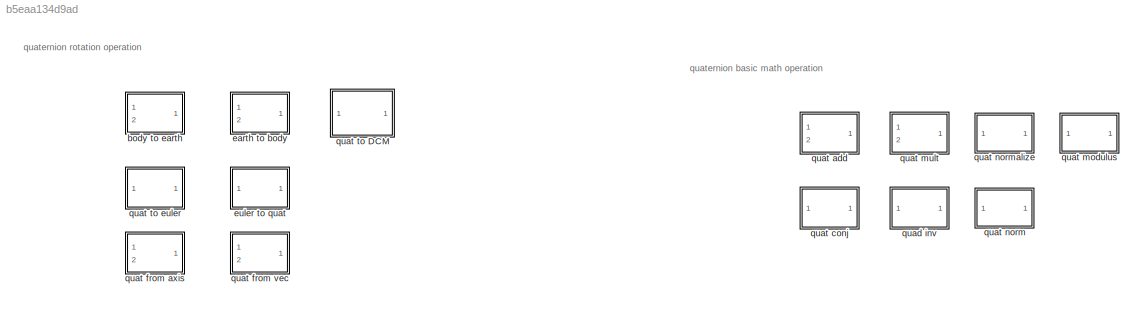
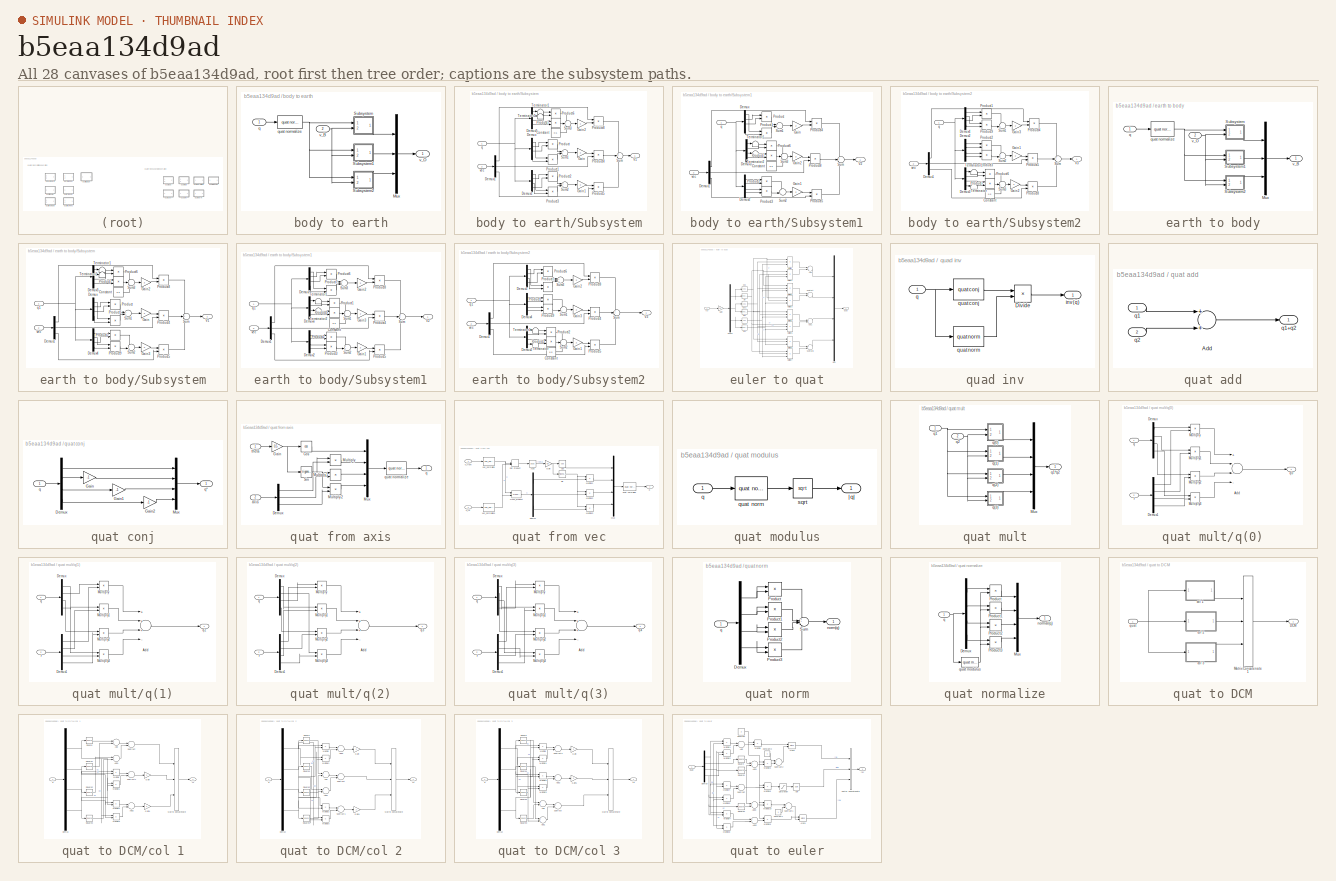
[diagram: thumbnail index - all 28 canvases of the model, root first then tree order]
MODEL slx_b5eaa134d9ad
KIND library
CONFIG AbsTol = auto
CONFIG EnableMultiTasking = off
CONFIG FixedStep = auto
CONFIG MaxStep = auto
CONFIG MinStep = auto
CONFIG RelTol = 1e-3
CONFIG SampleTimeConstraint = Unconstrained
CONFIG Solver = VariableStepAuto
CONFIG SolverName = VariableStepAuto
CONFIG StartTime = 0.0
CONFIG StopTime = 10.0
BLOCK [SubSystem] body to earth
  Ports = [2, 1]
  RequestExecContextInheritance = off
BLOCK [Mux] body to earth/Mux
  DisplayOption = bar
  Inputs = 3
  Ports = [3, 1]
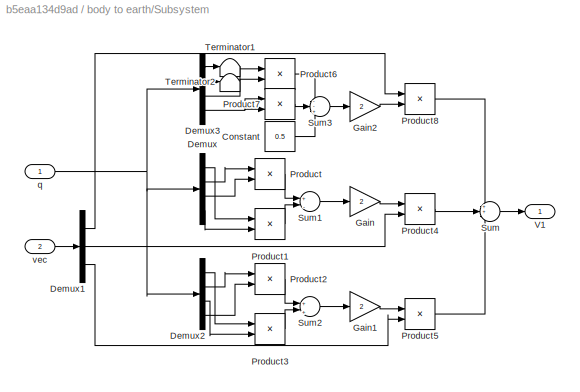
BLOCK [SubSystem] body to earth/Subsystem
  Ports = [2, 1]
  RequestExecContextInheritance = off
BLOCK [Constant] body to earth/Subsystem/Constant
  OutDataTypeStr = single
  Value = 0.5
BLOCK [Demux] body to earth/Subsystem/Demux
  DisplayOption = bar
  Ports = [1, 4]
BLOCK [Demux] body to earth/Subsystem/Demux1
  DisplayOption = bar
  Outputs = 3
  Ports = [1, 3]
BLOCK [Demux] body to earth/Subsystem/Demux2
  DisplayOption = bar
  Ports = [1, 4]
BLOCK [Demux] body to earth/Subsystem/Demux3
  DisplayOption = bar
  Ports = [1, 4]
BLOCK [Gain] body to earth/Subsystem/Gain
  Gain = 2
  ParamDataTypeStr = Inherit: Inherit via internal rule
  SaturateOnIntegerOverflow = off
BLOCK [Gain] body to earth/Subsystem/Gain1
  Gain = 2
  ParamDataTypeStr = Inherit: Inherit via internal rule
  SaturateOnIntegerOverflow = off
BLOCK [Gain] body to earth/Subsystem/Gain2
  Gain = 2
  ParamDataTypeStr = Inherit: Inherit via internal rule
  SaturateOnIntegerOverflow = off
BLOCK [Product] body to earth/Subsystem/Product
  InputSameDT = off
  OutDataTypeStr = Inherit: Inherit via internal rule
  Ports = [2, 1]
  SaturateOnIntegerOverflow = off
BLOCK [Product] body to earth/Subsystem/Product1
  InputSameDT = off
  OutDataTypeStr = Inherit: Inherit via internal rule
  Ports = [2, 1]
  SaturateOnIntegerOverflow = off
BLOCK [Product] body to earth/Subsystem/Product2
  InputSameDT = off
  OutDataTypeStr = Inherit: Inherit via internal rule
  Ports = [2, 1]
  SaturateOnIntegerOverflow = off
BLOCK [Product] body to earth/Subsystem/Product3
  InputSameDT = off
  OutDataTypeStr = Inherit: Inherit via internal rule
  Ports = [2, 1]
  SaturateOnIntegerOverflow = off
BLOCK [Product] body to earth/Subsystem/Product4
  InputSameDT = off
  Ports = [2, 1]
  SaturateOnIntegerOverflow = off
BLOCK [Product] body to earth/Subsystem/Product5
  InputSameDT = off
  Ports = [2, 1]
  SaturateOnIntegerOverflow = off
BLOCK [Product] body to earth/Subsystem/Product6
  InputSameDT = off
  OutDataTypeStr = Inherit: Inherit via internal rule
  Ports = [2, 1]
  SaturateOnIntegerOverflow = off
BLOCK [Product] body to earth/Subsystem/Product7
  InputSameDT = off
  OutDataTypeStr = Inherit: Inherit via internal rule
  Ports = [2, 1]
  SaturateOnIntegerOverflow = off
BLOCK [Product] body to earth/Subsystem/Product8
  InputSameDT = off
  Ports = [2, 1]
  SaturateOnIntegerOverflow = off
BLOCK [Sum] body to earth/Subsystem/Sum
  AccumDataTypeStr = single
  IconShape = round
  InputSameDT = off
  Inputs = 3
  OutDataTypeStr = Inherit: Inherit via internal rule
  Ports = [3, 1]
  SaturateOnIntegerOverflow = off
BLOCK [Sum] body to earth/Subsystem/Sum1
  IconShape = round
  InputSameDT = off
  Inputs = +|-
  OutDataTypeStr = Inherit: Inherit via internal rule
  Ports = [2, 1]
  SaturateOnIntegerOverflow = off
BLOCK [Sum] body to earth/Subsystem/Sum2
  IconShape = round
  InputSameDT = off
  Inputs = +|+
  OutDataTypeStr = Inherit: Inherit via internal rule
  Ports = [2, 1]
  SaturateOnIntegerOverflow = off
BLOCK [Sum] body to earth/Subsystem/Sum3
  IconShape = round
  InputSameDT = off
  Inputs = --+
  OutDataTypeStr = Inherit: Inherit via internal rule
  Ports = [3, 1]
  SaturateOnIntegerOverflow = off
BLOCK [Terminator] body to earth/Subsystem/Terminator1
BLOCK [Terminator] body to earth/Subsystem/Terminator2
BLOCK [Outport] body to earth/Subsystem/V1
  IconDisplay = Port number
BLOCK [Inport] body to earth/Subsystem/q
  IconDisplay = Port number
BLOCK [Inport] body to earth/Subsystem/vec
  IconDisplay = Port number
  Port = 2
BLOCK [SubSystem] body to earth/Subsystem1
  Ports = [2, 1]
  RequestExecContextInheritance = off
BLOCK [Constant] body to earth/Subsystem1/Constant
  OutDataTypeStr = single
  Value = 0.5
BLOCK [Demux] body to earth/Subsystem1/Demux
  DisplayOption = bar
  Ports = [1, 4]
BLOCK [Demux] body to earth/Subsystem1/Demux1
  DisplayOption = bar
  Outputs = 3
  Ports = [1, 3]
BLOCK [Demux] body to earth/Subsystem1/Demux2
  DisplayOption = bar
  Ports = [1, 4]
BLOCK [Demux] body to earth/Subsystem1/Demux3
  DisplayOption = bar
  Ports = [1, 4]
BLOCK [Gain] body to earth/Subsystem1/Gain
  Gain = 2
  ParamDataTypeStr = Inherit: Inherit via internal rule
  SaturateOnIntegerOverflow = off
BLOCK [Gain] body to earth/Subsystem1/Gain1
  Gain = 2
  ParamDataTypeStr = Inherit: Inherit via internal rule
  SaturateOnIntegerOverflow = off
BLOCK [Gain] body to earth/Subsystem1/Gain2
  Gain = 2
  ParamDataTypeStr = Inherit: Inherit via internal rule
  SaturateOnIntegerOverflow = off
BLOCK [Product] body to earth/Subsystem1/Product
  InputSameDT = off
  OutDataTypeStr = Inherit: Inherit via internal rule
  Ports = [2, 1]
  SaturateOnIntegerOverflow = off
BLOCK [Product] body to earth/Subsystem1/Product1
  InputSameDT = off
  OutDataTypeStr = Inherit: Inherit via internal rule
  Ports = [2, 1]
  SaturateOnIntegerOverflow = off
BLOCK [Product] body to earth/Subsystem1/Product2
  InputSameDT = off
  OutDataTypeStr = Inherit: Inherit via internal rule
  Ports = [2, 1]
  SaturateOnIntegerOverflow = off
BLOCK [Product] body to earth/Subsystem1/Product3
  InputSameDT = off
  OutDataTypeStr = Inherit: Inherit via internal rule
  Ports = [2, 1]
  SaturateOnIntegerOverflow = off
BLOCK [Product] body to earth/Subsystem1/Product4
  InputSameDT = off
  OutDataTypeStr = Inherit: Inherit via internal rule
  Ports = [2, 1]
  SaturateOnIntegerOverflow = off
BLOCK [Product] body to earth/Subsystem1/Product5
  InputSameDT = off
  OutDataTypeStr = Inherit: Inherit via internal rule
  Ports = [2, 1]
  SaturateOnIntegerOverflow = off
BLOCK [Product] body to earth/Subsystem1/Product6
  InputSameDT = off
  OutDataTypeStr = Inherit: Inherit via internal rule
  Ports = [2, 1]
  SaturateOnIntegerOverflow = off
BLOCK [Product] body to earth/Subsystem1/Product7
  InputSameDT = off
  OutDataTypeStr = Inherit: Inherit via internal rule
  Ports = [2, 1]
  SaturateOnIntegerOverflow = off
BLOCK [Product] body to earth/Subsystem1/Product8
  InputSameDT = off
  OutDataTypeStr = Inherit: Inherit via internal rule
  Ports = [2, 1]
  SaturateOnIntegerOverflow = off
BLOCK [Sum] body to earth/Subsystem1/Sum
  AccumDataTypeStr = single
  IconShape = round
  InputSameDT = off
  Inputs = 3
  OutDataTypeStr = Inherit: Inherit via internal rule
  Ports = [3, 1]
  SaturateOnIntegerOverflow = off
BLOCK [Sum] body to earth/Subsystem1/Sum1
  IconShape = round
  InputSameDT = off
  Inputs = +|+
  OutDataTypeStr = Inherit: Inherit via internal rule
  Ports = [2, 1]
  SaturateOnIntegerOverflow = off
BLOCK [Sum] body to earth/Subsystem1/Sum2
  IconShape = round
  InputSameDT = off
  Inputs = -+|
  OutDataTypeStr = Inherit: Inherit via internal rule
  Ports = [2, 1]
  SaturateOnIntegerOverflow = off
BLOCK [Sum] body to earth/Subsystem1/Sum3
  IconShape = round
  InputSameDT = off
  Inputs = --+
  OutDataTypeStr = Inherit: Inherit via internal rule
  Ports = [3, 1]
  SaturateOnIntegerOverflow = off
BLOCK [Terminator] body to earth/Subsystem1/Terminator1
BLOCK [Terminator] body to earth/Subsystem1/Terminator2
BLOCK [Outport] body to earth/Subsystem1/V2
  IconDisplay = Port number
BLOCK [Inport] body to earth/Subsystem1/q
  IconDisplay = Port number
BLOCK [Inport] body to earth/Subsystem1/vec
  IconDisplay = Port number
  Port = 2
BLOCK [SubSystem] body to earth/Subsystem2
  Ports = [2, 1]
  RequestExecContextInheritance = off
BLOCK [Constant] body to earth/Subsystem2/Constant
  OutDataTypeStr = single
  Value = 0.5
BLOCK [Demux] body to earth/Subsystem2/Demux1
  DisplayOption = bar
  Outputs = 3
  Ports = [1, 3]
BLOCK [Demux] body to earth/Subsystem2/Demux2
  DisplayOption = bar
  Ports = [1, 4]
BLOCK [Demux] body to earth/Subsystem2/Demux3
  DisplayOption = bar
  Ports = [1, 4]
BLOCK [Demux] body to earth/Subsystem2/Demux4
  DisplayOption = bar
  Ports = [1, 4]
BLOCK [Gain] body to earth/Subsystem2/Gain1
  Gain = 2
  ParamDataTypeStr = Inherit: Inherit via internal rule
  SaturateOnIntegerOverflow = off
BLOCK [Gain] body to earth/Subsystem2/Gain2
  Gain = 2
  ParamDataTypeStr = Inherit: Inherit via internal rule
  SaturateOnIntegerOverflow = off
BLOCK [Gain] body to earth/Subsystem2/Gain3
  Gain = 2
  ParamDataTypeStr = Inherit: Inherit via internal rule
  SaturateOnIntegerOverflow = off
BLOCK [Product] body to earth/Subsystem2/Product1
  InputSameDT = off
  OutDataTypeStr = Inherit: Inherit via internal rule
  Ports = [2, 1]
  SaturateOnIntegerOverflow = off
BLOCK [Product] body to earth/Subsystem2/Product2
  InputSameDT = off
  OutDataTypeStr = Inherit: Inherit via internal rule
  Ports = [2, 1]
  SaturateOnIntegerOverflow = off
BLOCK [Product] body to earth/Subsystem2/Product3
  InputSameDT = off
  OutDataTypeStr = Inherit: Inherit via internal rule
  Ports = [2, 1]
  SaturateOnIntegerOverflow = off
BLOCK [Product] body to earth/Subsystem2/Product4
  InputSameDT = off
  OutDataTypeStr = Inherit: Inherit via internal rule
  Ports = [2, 1]
  SaturateOnIntegerOverflow = off
BLOCK [Product] body to earth/Subsystem2/Product5
  InputSameDT = off
  OutDataTypeStr = Inherit: Inherit via internal rule
  Ports = [2, 1]
  SaturateOnIntegerOverflow = off
BLOCK [Product] body to earth/Subsystem2/Product6
  InputSameDT = off
  OutDataTypeStr = Inherit: Inherit via internal rule
  Ports = [2, 1]
  SaturateOnIntegerOverflow = off
BLOCK [Product] body to earth/Subsystem2/Product7
  InputSameDT = off
  OutDataTypeStr = Inherit: Inherit via internal rule
  Ports = [2, 1]
  SaturateOnIntegerOverflow = off
BLOCK [Product] body to earth/Subsystem2/Product8
  InputSameDT = off
  OutDataTypeStr = Inherit: Inherit via internal rule
  Ports = [2, 1]
  SaturateOnIntegerOverflow = off
BLOCK [Product] body to earth/Subsystem2/Product9
  InputSameDT = off
  OutDataTypeStr = Inherit: Inherit via internal rule
  Ports = [2, 1]
  SaturateOnIntegerOverflow = off
BLOCK [Sum] body to earth/Subsystem2/Sum
  AccumDataTypeStr = single
  IconShape = round
  InputSameDT = off
  Inputs = 3
  OutDataTypeStr = Inherit: Inherit via internal rule
  Ports = [3, 1]
  SaturateOnIntegerOverflow = off
BLOCK [Sum] body to earth/Subsystem2/Sum1
  IconShape = round
  InputSameDT = off
  Inputs = -+|
  OutDataTypeStr = Inherit: Inherit via internal rule
  Ports = [2, 1]
  SaturateOnIntegerOverflow = off
BLOCK [Sum] body to earth/Subsystem2/Sum2
  IconShape = round
  InputSameDT = off
  Inputs = ++|
  OutDataTypeStr = Inherit: Inherit via internal rule
  Ports = [2, 1]
  SaturateOnIntegerOverflow = off
BLOCK [Sum] body to earth/Subsystem2/Sum3
  IconShape = round
  InputSameDT = off
  Inputs = --+
  OutDataTypeStr = Inherit: Inherit via internal rule
  Ports = [3, 1]
  SaturateOnIntegerOverflow = off
BLOCK [Terminator] body to earth/Subsystem2/Terminator
BLOCK [Terminator] body to earth/Subsystem2/Terminator1
BLOCK [Outport] body to earth/Subsystem2/V3
  IconDisplay = Port number
BLOCK [Inport] body to earth/Subsystem2/q
  IconDisplay = Port number
BLOCK [Inport] body to earth/Subsystem2/vec
  IconDisplay = Port number
  Port = 2
BLOCK [Inport] body to earth/q
  IconDisplay = Port number
  Unit = 1
BLOCK [Reference] body to earth/quat normalize  REF=$bdroot/quat normalize
  Ports = [1, 1]
  SourceBlock = $bdroot/quat normalize
  SourceType = SubSystem
BLOCK [Inport] body to earth/v_B
  IconDisplay = Port number
  Port = 2
BLOCK [Outport] body to earth/v_O
  IconDisplay = Port number
BLOCK [SubSystem] earth to body
  Ports = [2, 1]
  RequestExecContextInheritance = off
BLOCK [Mux] earth to body/Mux
  DisplayOption = bar
  Inputs = 3
  Ports = [3, 1]
BLOCK [SubSystem] earth to body/Subsystem
  Ports = [2, 1]
  RequestExecContextInheritance = off
BLOCK [Constant] earth to body/Subsystem/Constant
  OutDataTypeStr = single
  Value = 0.5
BLOCK [Demux] earth to body/Subsystem/Demux
  DisplayOption = bar
  Ports = [1, 4]
BLOCK [Demux] earth to body/Subsystem/Demux1
  DisplayOption = bar
  Outputs = 3
  Ports = [1, 3]
BLOCK [Demux] earth to body/Subsystem/Demux3
  DisplayOption = bar
  Ports = [1, 4]
BLOCK [Demux] earth to body/Subsystem/Demux4
  DisplayOption = bar
  Ports = [1, 4]
BLOCK [Gain] earth to body/Subsystem/Gain
  Gain = 2
  ParamDataTypeStr = Inherit: Inherit via internal rule
  SaturateOnIntegerOverflow = off
BLOCK [Gain] earth to body/Subsystem/Gain2
  Gain = 2
  ParamDataTypeStr = Inherit: Inherit via internal rule
  SaturateOnIntegerOverflow = off
BLOCK [Gain] earth to body/Subsystem/Gain3
  Gain = 2
  ParamDataTypeStr = Inherit: Inherit via internal rule
  SaturateOnIntegerOverflow = off
BLOCK [Product] earth to body/Subsystem/Product
  InputSameDT = off
  OutDataTypeStr = Inherit: Inherit via internal rule
  Ports = [2, 1]
  SaturateOnIntegerOverflow = off
BLOCK [Product] earth to body/Subsystem/Product1
  InputSameDT = off
  OutDataTypeStr = Inherit: Inherit via internal rule
  Ports = [2, 1]
  SaturateOnIntegerOverflow = off
BLOCK [Product] earth to body/Subsystem/Product2
  InputSameDT = off
  OutDataTypeStr = Inherit: Inherit via internal rule
  Ports = [2, 1]
  SaturateOnIntegerOverflow = off
BLOCK [Product] earth to body/Subsystem/Product4
  InputSameDT = off
  Ports = [2, 1]
  SaturateOnIntegerOverflow = off
BLOCK [Product] earth to body/Subsystem/Product5
  InputSameDT = off
  Ports = [2, 1]
  SaturateOnIntegerOverflow = off
BLOCK [Product] earth to body/Subsystem/Product6
  InputSameDT = off
  OutDataTypeStr = Inherit: Inherit via internal rule
  Ports = [2, 1]
  SaturateOnIntegerOverflow = off
BLOCK [Product] earth to body/Subsystem/Product7
  InputSameDT = off
  OutDataTypeStr = Inherit: Inherit via internal rule
  Ports = [2, 1]
  SaturateOnIntegerOverflow = off
BLOCK [Product] earth to body/Subsystem/Product8
  InputSameDT = off
  Ports = [2, 1]
  SaturateOnIntegerOverflow = off
BLOCK [Product] earth to body/Subsystem/Product9
  InputSameDT = off
  OutDataTypeStr = Inherit: Inherit via internal rule
  Ports = [2, 1]
  SaturateOnIntegerOverflow = off
BLOCK [Sum] earth to body/Subsystem/Sum
  AccumDataTypeStr = single
  IconShape = round
  InputSameDT = off
  Inputs = 3
  OutDataTypeStr = Inherit: Inherit via internal rule
  Ports = [3, 1]
  SaturateOnIntegerOverflow = off
BLOCK [Sum] earth to body/Subsystem/Sum1
  IconShape = round
  InputSameDT = off
  Inputs = +|+
  OutDataTypeStr = Inherit: Inherit via internal rule
  Ports = [2, 1]
  SaturateOnIntegerOverflow = off
BLOCK [Sum] earth to body/Subsystem/Sum2
  IconShape = round
  InputSameDT = off
  Inputs = -+|
  OutDataTypeStr = Inherit: Inherit via internal rule
  Ports = [2, 1]
  SaturateOnIntegerOverflow = off
BLOCK [Sum] earth to body/Subsystem/Sum3
  IconShape = round
  InputSameDT = off
  Inputs = --+
  OutDataTypeStr = Inherit: Inherit via internal rule
  Ports = [3, 1]
  SaturateOnIntegerOverflow = off
BLOCK [Terminator] earth to body/Subsystem/Terminator1
BLOCK [Terminator] earth to body/Subsystem/Terminator2
BLOCK [Outport] earth to body/Subsystem/V1
  IconDisplay = Port number
BLOCK [Inport] earth to body/Subsystem/q1
  IconDisplay = Port number
BLOCK [Inport] earth to body/Subsystem/vec
  IconDisplay = Port number
  Port = 2
BLOCK [SubSystem] earth to body/Subsystem1
  Ports = [2, 1]
  RequestExecContextInheritance = off
BLOCK [Constant] earth to body/Subsystem1/Constant
  OutDataTypeStr = single
  Value = 0.5
BLOCK [Demux] earth to body/Subsystem1/Demux1
  DisplayOption = bar
  Outputs = 3
  Ports = [1, 3]
BLOCK [Demux] earth to body/Subsystem1/Demux2
  DisplayOption = bar
  Ports = [1, 4]
BLOCK [Demux] earth to body/Subsystem1/Demux3
  DisplayOption = bar
  Ports = [1, 4]
BLOCK [Demux] earth to body/Subsystem1/Demux4
  DisplayOption = bar
  Ports = [1, 4]
BLOCK [Gain] earth to body/Subsystem1/Gain1
  Gain = 2
  ParamDataTypeStr = Inherit: Inherit via internal rule
  SaturateOnIntegerOverflow = off
BLOCK [Gain] earth to body/Subsystem1/Gain2
  Gain = 2
  ParamDataTypeStr = Inherit: Inherit via internal rule
  SaturateOnIntegerOverflow = off
BLOCK [Gain] earth to body/Subsystem1/Gain3
  Gain = 2
  ParamDataTypeStr = Inherit: Inherit via internal rule
  SaturateOnIntegerOverflow = off
BLOCK [Product] earth to body/Subsystem1/Product1
  InputSameDT = off
  OutDataTypeStr = Inherit: Inherit via internal rule
  Ports = [2, 1]
  SaturateOnIntegerOverflow = off
BLOCK [Product] earth to body/Subsystem1/Product2
  InputSameDT = off
  OutDataTypeStr = Inherit: Inherit via internal rule
  Ports = [2, 1]
  SaturateOnIntegerOverflow = off
BLOCK [Product] earth to body/Subsystem1/Product3
  InputSameDT = off
  OutDataTypeStr = Inherit: Inherit via internal rule
  Ports = [2, 1]
  SaturateOnIntegerOverflow = off
BLOCK [Product] earth to body/Subsystem1/Product4
  InputSameDT = off
  Ports = [2, 1]
  SaturateOnIntegerOverflow = off
BLOCK [Product] earth to body/Subsystem1/Product5
  InputSameDT = off
  Ports = [2, 1]
  SaturateOnIntegerOverflow = off
BLOCK [Product] earth to body/Subsystem1/Product6
  InputSameDT = off
  OutDataTypeStr = Inherit: Inherit via internal rule
  Ports = [2, 1]
  SaturateOnIntegerOverflow = off
BLOCK [Product] earth to body/Subsystem1/Product7
  InputSameDT = off
  OutDataTypeStr = Inherit: Inherit via internal rule
  Ports = [2, 1]
  SaturateOnIntegerOverflow = off
BLOCK [Product] earth to body/Subsystem1/Product8
  InputSameDT = off
  Ports = [2, 1]
  SaturateOnIntegerOverflow = off
BLOCK [Product] earth to body/Subsystem1/Product9
  InputSameDT = off
  OutDataTypeStr = Inherit: Inherit via internal rule
  Ports = [2, 1]
  SaturateOnIntegerOverflow = off
BLOCK [Sum] earth to body/Subsystem1/Sum
  AccumDataTypeStr = single
  IconShape = round
  InputSameDT = off
  Inputs = 3
  OutDataTypeStr = Inherit: Inherit via internal rule
  Ports = [3, 1]
  SaturateOnIntegerOverflow = off
BLOCK [Sum] earth to body/Subsystem1/Sum1
  IconShape = round
  InputSameDT = off
  Inputs = --+
  OutDataTypeStr = Inherit: Inherit via internal rule
  Ports = [3, 1]
  SaturateOnIntegerOverflow = off
BLOCK [Sum] earth to body/Subsystem1/Sum2
  IconShape = round
  InputSameDT = off
  Inputs = ++|
  OutDataTypeStr = Inherit: Inherit via internal rule
  Ports = [2, 1]
  SaturateOnIntegerOverflow = off
BLOCK [Sum] earth to body/Subsystem1/Sum3
  IconShape = round
  InputSameDT = off
  Inputs = +|-
  OutDataTypeStr = Inherit: Inherit via internal rule
  Ports = [2, 1]
  SaturateOnIntegerOverflow = off
BLOCK [Terminator] earth to body/Subsystem1/Terminator1
BLOCK [Terminator] earth to body/Subsystem1/Terminator2
BLOCK [Outport] earth to body/Subsystem1/V2
  IconDisplay = Port number
BLOCK [Inport] earth to body/Subsystem1/q1
  IconDisplay = Port number
BLOCK [Inport] earth to body/Subsystem1/vec
  IconDisplay = Port number
  Port = 2
BLOCK [SubSystem] earth to body/Subsystem2
  Ports = [2, 1]
  RequestExecContextInheritance = off
BLOCK [Constant] earth to body/Subsystem2/Constant
  OutDataTypeStr = single
  Value = 0.5
BLOCK [Demux] earth to body/Subsystem2/Demux1
  DisplayOption = bar
  Outputs = 3
  Ports = [1, 3]
BLOCK [Demux] earth to body/Subsystem2/Demux2
  DisplayOption = bar
  Ports = [1, 4]
BLOCK [Demux] earth to body/Subsystem2/Demux3
  DisplayOption = bar
  Ports = [1, 4]
BLOCK [Demux] earth to body/Subsystem2/Demux4
  DisplayOption = bar
  Ports = [1, 4]
BLOCK [Gain] earth to body/Subsystem2/Gain1
  Gain = 2
  ParamDataTypeStr = Inherit: Inherit via internal rule
  SaturateOnIntegerOverflow = off
BLOCK [Gain] earth to body/Subsystem2/Gain2
  Gain = 2
  ParamDataTypeStr = Inherit: Inherit via internal rule
  SaturateOnIntegerOverflow = off
BLOCK [Gain] earth to body/Subsystem2/Gain3
  Gain = 2
  ParamDataTypeStr = Inherit: Inherit via internal rule
  SaturateOnIntegerOverflow = off
BLOCK [Product] earth to body/Subsystem2/Product1
  InputSameDT = off
  OutDataTypeStr = Inherit: Inherit via internal rule
  Ports = [2, 1]
  SaturateOnIntegerOverflow = off
BLOCK [Product] earth to body/Subsystem2/Product2
  InputSameDT = off
  OutDataTypeStr = Inherit: Inherit via internal rule
  Ports = [2, 1]
  SaturateOnIntegerOverflow = off
BLOCK [Product] earth to body/Subsystem2/Product3
  InputSameDT = off
  OutDataTypeStr = Inherit: Inherit via internal rule
  Ports = [2, 1]
  SaturateOnIntegerOverflow = off
BLOCK [Product] earth to body/Subsystem2/Product4
  InputSameDT = off
  Ports = [2, 1]
  SaturateOnIntegerOverflow = off
BLOCK [Product] earth to body/Subsystem2/Product5
  InputSameDT = off
  Ports = [2, 1]
  SaturateOnIntegerOverflow = off
BLOCK [Product] earth to body/Subsystem2/Product6
  InputSameDT = off
  OutDataTypeStr = Inherit: Inherit via internal rule
  Ports = [2, 1]
  SaturateOnIntegerOverflow = off
BLOCK [Product] earth to body/Subsystem2/Product7
  InputSameDT = off
  OutDataTypeStr = Inherit: Inherit via internal rule
  Ports = [2, 1]
  SaturateOnIntegerOverflow = off
BLOCK [Product] earth to body/Subsystem2/Product8
  InputSameDT = off
  Ports = [2, 1]
  SaturateOnIntegerOverflow = off
BLOCK [Product] earth to body/Subsystem2/Product9
  InputSameDT = off
  OutDataTypeStr = Inherit: Inherit via internal rule
  Ports = [2, 1]
  SaturateOnIntegerOverflow = off
BLOCK [Sum] earth to body/Subsystem2/Sum
  AccumDataTypeStr = single
  IconShape = round
  InputSameDT = off
  Inputs = 3
  OutDataTypeStr = Inherit: Inherit via internal rule
  Ports = [3, 1]
  SaturateOnIntegerOverflow = off
BLOCK [Sum] earth to body/Subsystem2/Sum1
  IconShape = round
  InputSameDT = off
  Inputs = -+|
  OutDataTypeStr = Inherit: Inherit via internal rule
  Ports = [2, 1]
  SaturateOnIntegerOverflow = off
BLOCK [Sum] earth to body/Subsystem2/Sum2
  IconShape = round
  InputSameDT = off
  Inputs = --+
  OutDataTypeStr = Inherit: Inherit via internal rule
  Ports = [3, 1]
  SaturateOnIntegerOverflow = off
BLOCK [Sum] earth to body/Subsystem2/Sum3
  IconShape = round
  InputSameDT = off
  Inputs = +|+
  OutDataTypeStr = Inherit: Inherit via internal rule
  Ports = [2, 1]
  SaturateOnIntegerOverflow = off
BLOCK [Terminator] earth to body/Subsystem2/Terminator
BLOCK [Terminator] earth to body/Subsystem2/Terminator1
BLOCK [Outport] earth to body/Subsystem2/V3
  IconDisplay = Port number
BLOCK [Inport] earth to body/Subsystem2/q1
  IconDisplay = Port number
BLOCK [Inport] earth to body/Subsystem2/vec
  IconDisplay = Port number
  Port = 2
BLOCK [Inport] earth to body/q
  IconDisplay = Port number
  Unit = 1
BLOCK [Reference] earth to body/quat normalize  REF=$bdroot/quat normalize
  Ports = [1, 1]
  SourceBlock = $bdroot/quat normalize
  SourceType = SubSystem
BLOCK [Outport] earth to body/v_B
  IconDisplay = Port number
BLOCK [Inport] earth to body/v_O
  IconDisplay = Port number
  Port = 2
BLOCK [SubSystem] euler to quat
  Ports = [1, 1]
  RequestExecContextInheritance = off
BLOCK [Sum] euler to quat/Add
  InputSameDT = off
  Ports = [2, 1]
  SaturateOnIntegerOverflow = off
BLOCK [Sum] euler to quat/Add1
  InputSameDT = off
  Ports = [2, 1]
  SaturateOnIntegerOverflow = off
BLOCK [Trigonometry] euler to quat/Cos
  Operator = cos
  Ports = [1, 1]
BLOCK [Trigonometry] euler to quat/Cos1
  Operator = cos
  Ports = [1, 1]
BLOCK [Trigonometry] euler to quat/Cos2
  Operator = cos
  Ports = [1, 1]
BLOCK [Demux] euler to quat/Demux
  DisplayOption = bar
  Outputs = 3
  Ports = [1, 3]
BLOCK [Gain] euler to quat/Gain
  Gain = 0.5
  ParamDataTypeStr = Inherit: Inherit via internal rule
  SaturateOnIntegerOverflow = off
BLOCK [Product] euler to quat/Multiply
  InputSameDT = off
  Inputs = 3
  Ports = [3, 1]
  RndMeth = Floor
  SaturateOnIntegerOverflow = off
BLOCK [Product] euler to quat/Multiply1
  InputSameDT = off
  Inputs = 3
  Ports = [3, 1]
  RndMeth = Floor
  SaturateOnIntegerOverflow = off
BLOCK [Product] euler to quat/Multiply2
  InputSameDT = off
  Inputs = 3
  Ports = [3, 1]
  RndMeth = Floor
  SaturateOnIntegerOverflow = off
BLOCK [Product] euler to quat/Multiply3
  InputSameDT = off
  Inputs = 3
  Ports = [3, 1]
  RndMeth = Floor
  SaturateOnIntegerOverflow = off
BLOCK [Product] euler to quat/Multiply4
  InputSameDT = off
  Inputs = 3
  Ports = [3, 1]
  RndMeth = Floor
  SaturateOnIntegerOverflow = off
BLOCK [Product] euler to quat/Multiply5
  InputSameDT = off
  Inputs = 3
  Ports = [3, 1]
  RndMeth = Floor
  SaturateOnIntegerOverflow = off
BLOCK [Product] euler to quat/Multiply6
  InputSameDT = off
  Inputs = 3
  Ports = [3, 1]
  RndMeth = Floor
  SaturateOnIntegerOverflow = off
BLOCK [Product] euler to quat/Multiply7
  InputSameDT = off
  Inputs = 3
  Ports = [3, 1]
  RndMeth = Floor
  SaturateOnIntegerOverflow = off
BLOCK [Mux] euler to quat/Mux
  DisplayOption = bar
  Ports = [4, 1]
BLOCK [Trigonometry] euler to quat/Sin
  Ports = [1, 1]
BLOCK [Trigonometry] euler to quat/Sin1
  Ports = [1, 1]
BLOCK [Trigonometry] euler to quat/Sin2
  Ports = [1, 1]
BLOCK [Sum] euler to quat/Subtract
  InputSameDT = off
  Inputs = +-
  Ports = [2, 1]
  SaturateOnIntegerOverflow = off
BLOCK [Sum] euler to quat/Subtract1
  InputSameDT = off
  Inputs = +-
  Ports = [2, 1]
  SaturateOnIntegerOverflow = off
BLOCK [Outport] euler to quat/quat
  IconDisplay = Port number
BLOCK [Inport] euler to quat/rpy
  IconDisplay = Port number
BLOCK [SubSystem] quad inv
  Ports = [1, 1]
  RequestExecContextInheritance = off
BLOCK [Product] quad inv/Divide
  InputSameDT = off
  Inputs = */
  OutDataTypeStr = Inherit: Inherit via internal rule
  Ports = [2, 1]
  RndMeth = Floor
  SaturateOnIntegerOverflow = off
BLOCK [Outport] quad inv/inv(q)
  IconDisplay = Port number
BLOCK [Inport] quad inv/q
  IconDisplay = Port number
BLOCK [Reference] quad inv/quat conj  REF=$bdroot/quat conj
  Ports = [1, 1]
  SourceBlock = $bdroot/quat conj
  SourceType = SubSystem
BLOCK [Reference] quad inv/quat norm  REF=$bdroot/quat norm
  Ports = [1, 1]
  SourceBlock = $bdroot/quat norm
  SourceType = SubSystem
BLOCK [SubSystem] quat add
  Ports = [2, 1]
  RequestExecContextInheritance = off
BLOCK [Sum] quat add/Add
  InputSameDT = off
  Ports = [2, 1]
  SaturateOnIntegerOverflow = off
BLOCK [Inport] quat add/q1
  IconDisplay = Port number
BLOCK [Outport] quat add/q1+q2
  IconDisplay = Port number
BLOCK [Inport] quat add/q2
  IconDisplay = Port number
  Port = 2
BLOCK [SubSystem] quat conj
  Ports = [1, 1]
  RequestExecContextInheritance = off
BLOCK [Demux] quat conj/Demux
  DisplayOption = bar
  Ports = [1, 4]
BLOCK [Gain] quat conj/Gain
  Gain = -1
  ParamDataTypeStr = Inherit: Inherit via internal rule
  SaturateOnIntegerOverflow = off
BLOCK [Gain] quat conj/Gain1
  Gain = -1
  ParamDataTypeStr = Inherit: Inherit via internal rule
  SaturateOnIntegerOverflow = off
BLOCK [Gain] quat conj/Gain2
  Gain = -1
  ParamDataTypeStr = Inherit: Inherit via internal rule
  SaturateOnIntegerOverflow = off
BLOCK [Mux] quat conj/Mux
  DisplayOption = bar
  Ports = [4, 1]
BLOCK [Inport] quat conj/q
  IconDisplay = Port number
BLOCK [Outport] quat conj/q*
  IconDisplay = Port number
BLOCK [SubSystem] quat from axis
  Ports = [2, 1]
  RequestExecContextInheritance = off
BLOCK [Trigonometry] quat from axis/Cos
  Operator = cos
  Ports = [1, 1]
BLOCK [Demux] quat from axis/Demux
  DisplayOption = bar
  Outputs = 3
  Ports = [1, 3]
BLOCK [Gain] quat from axis/Gain
  Gain = 0.5
  ParamDataTypeStr = Inherit: Inherit via internal rule
  SaturateOnIntegerOverflow = off
BLOCK [Product] quat from axis/Multiply
  InputSameDT = off
  Ports = [2, 1]
  RndMeth = Floor
  SaturateOnIntegerOverflow = off
BLOCK [Product] quat from axis/Multiply1
  InputSameDT = off
  Ports = [2, 1]
  RndMeth = Floor
  SaturateOnIntegerOverflow = off
BLOCK [Product] quat from axis/Multiply2
  InputSameDT = off
  Ports = [2, 1]
  RndMeth = Floor
  SaturateOnIntegerOverflow = off
BLOCK [Mux] quat from axis/Mux
  DisplayOption = bar
  Ports = [4, 1]
BLOCK [Trigonometry] quat from axis/Sin
  Ports = [1, 1]
BLOCK [Inport] quat from axis/axis
  IconDisplay = Port number
  Port = 2
BLOCK [Outport] quat from axis/q
  IconDisplay = Port number
BLOCK [Reference] quat from axis/quat normalize  REF=$bdroot/quat normalize
  Ports = [1, 1]
  SourceBlock = $bdroot/quat normalize
  SourceType = SubSystem
BLOCK [Inport] quat from axis/theta
  IconDisplay = Port number
BLOCK [SubSystem] quat from vec
  Ports = [2, 1]
  RequestExecContextInheritance = off
BLOCK [Trigonometry] quat from vec/Acos
  Operator = acos
  Ports = [1, 1]
BLOCK [Trigonometry] quat from vec/Cos
  Operator = cos
  Ports = [1, 1]
BLOCK [Demux] quat from vec/Demux
  DisplayOption = bar
  Outputs = 3
  Ports = [1, 3]
BLOCK [DotProduct] quat from vec/Dot Product
  OutDataTypeStr = Inherit: Inherit via internal rule
BLOCK [Gain] quat from vec/Gain
  Gain = 0.5
  ParamDataTypeStr = Inherit: Inherit via internal rule
  SaturateOnIntegerOverflow = off
BLOCK [Product] quat from vec/Multiply1
  InputSameDT = off
  OutDataTypeStr = Inherit: Inherit via internal rule
  Ports = [2, 1]
  RndMeth = Floor
  SaturateOnIntegerOverflow = off
BLOCK [Product] quat from vec/Multiply2
  InputSameDT = off
  OutDataTypeStr = Inherit: Inherit via internal rule
  Ports = [2, 1]
  RndMeth = Floor
  SaturateOnIntegerOverflow = off
BLOCK [Product] quat from vec/Multiply3
  InputSameDT = off
  OutDataTypeStr = Inherit: Inherit via internal rule
  Ports = [2, 1]
  RndMeth = Floor
  SaturateOnIntegerOverflow = off
BLOCK [Mux] quat from vec/Mux
  DisplayOption = bar
  Ports = [4, 1]
BLOCK [Trigonometry] quat from vec/Sin
  Ports = [1, 1]
BLOCK [Reference] quat from vec/cross_product  REF=AP_Math/cross_product
  Ports = [2, 1]
  SourceBlock = AP_Math/cross_product
  SourceType = SubSystem
BLOCK [Outport] quat from vec/q
  IconDisplay = Port number
BLOCK [Reference] quat from vec/quat normalize  REF=$bdroot/quat normalize
  Ports = [1, 1]
  SourceBlock = $bdroot/quat normalize
  SourceType = SubSystem
BLOCK [Inport] quat from vec/v_from
  IconDisplay = Port number
BLOCK [Inport] quat from vec/v_to
  IconDisplay = Port number
  Port = 2
BLOCK [Reference] quat from vec/vec_normalize  REF=AP_Math/vec_normalize
  Ports = [1, 1]
  SourceBlock = AP_Math/vec_normalize
  SourceType = SubSystem
BLOCK [Reference] quat from vec/vec_normalize1  REF=AP_Math/vec_normalize
  Ports = [1, 1]
  SourceBlock = AP_Math/vec_normalize
  SourceType = SubSystem
BLOCK [SubSystem] quat modulus
  Ports = [1, 1]
  RequestExecContextInheritance = off
BLOCK [Inport] quat modulus/q
  IconDisplay = Port number
  Unit = 1
BLOCK [Reference] quat modulus/quat norm  REF=$bdroot/quat norm
  Ports = [1, 1]
  SourceBlock = $bdroot/quat norm
  SourceType = SubSystem
BLOCK [Sqrt] quat modulus/sqrt
  AlgorithmType = Newton-Raphson
BLOCK [Outport] quat modulus/|q|
  IconDisplay = Port number
  Unit = 1
BLOCK [SubSystem] quat mult
  Ports = [2, 1]
  RequestExecContextInheritance = off
BLOCK [Mux] quat mult/Mux
  DisplayOption = bar
  Ports = [4, 1]
BLOCK [SubSystem] quat mult/q(0)
  Ports = [2, 1]
  RequestExecContextInheritance = off
BLOCK [Sum] quat mult/q(0)/Add
  AccumDataTypeStr = Inherit: Same as first input
  InputSameDT = off
  Inputs = +---
  OutDataTypeStr = Inherit: Inherit via internal rule
  Ports = [4, 1]
  SaturateOnIntegerOverflow = off
BLOCK [Demux] quat mult/q(0)/Demux
  DisplayOption = bar
  Ports = [1, 4]
BLOCK [Demux] quat mult/q(0)/Demux1
  DisplayOption = bar
  Ports = [1, 4]
BLOCK [Product] quat mult/q(0)/Multiply
  InputSameDT = off
  Ports = [2, 1]
  RndMeth = Floor
  SaturateOnIntegerOverflow = off
BLOCK [Product] quat mult/q(0)/Multiply1
  InputSameDT = off
  Ports = [2, 1]
  RndMeth = Floor
  SaturateOnIntegerOverflow = off
BLOCK [Product] quat mult/q(0)/Multiply2
  InputSameDT = off
  Ports = [2, 1]
  RndMeth = Floor
  SaturateOnIntegerOverflow = off
BLOCK [Product] quat mult/q(0)/Multiply3
  InputSameDT = off
  Ports = [2, 1]
  RndMeth = Floor
  SaturateOnIntegerOverflow = off
BLOCK [Inport] quat mult/q(0)/q
  IconDisplay = Port number
BLOCK [Outport] quat mult/q(0)/q0
  IconDisplay = Port number
BLOCK [Inport] quat mult/q(0)/r
  IconDisplay = Port number
  Port = 2
BLOCK [SubSystem] quat mult/q(1)
  Ports = [2, 1]
  RequestExecContextInheritance = off
BLOCK [Sum] quat mult/q(1)/Add
  AccumDataTypeStr = Inherit: Same as first input
  InputSameDT = off
  Inputs = +++-
  OutDataTypeStr = Inherit: Inherit via internal rule
  Ports = [4, 1]
  SaturateOnIntegerOverflow = off
BLOCK [Demux] quat mult/q(1)/Demux
  DisplayOption = bar
  Ports = [1, 4]
BLOCK [Demux] quat mult/q(1)/Demux1
  DisplayOption = bar
  Ports = [1, 4]
BLOCK [Product] quat mult/q(1)/Multiply
  InputSameDT = off
  Ports = [2, 1]
  RndMeth = Floor
  SaturateOnIntegerOverflow = off
BLOCK [Product] quat mult/q(1)/Multiply1
  InputSameDT = off
  Ports = [2, 1]
  RndMeth = Floor
  SaturateOnIntegerOverflow = off
BLOCK [Product] quat mult/q(1)/Multiply2
  InputSameDT = off
  Ports = [2, 1]
  RndMeth = Floor
  SaturateOnIntegerOverflow = off
BLOCK [Product] quat mult/q(1)/Multiply3
  InputSameDT = off
  Ports = [2, 1]
  RndMeth = Floor
  SaturateOnIntegerOverflow = off
BLOCK [Inport] quat mult/q(1)/q
  IconDisplay = Port number
BLOCK [Outport] quat mult/q(1)/q2
  IconDisplay = Port number
BLOCK [Inport] quat mult/q(1)/r
  IconDisplay = Port number
  Port = 2
BLOCK [SubSystem] quat mult/q(2)
  Ports = [2, 1]
  RequestExecContextInheritance = off
BLOCK [Sum] quat mult/q(2)/Add
  AccumDataTypeStr = Inherit: Same as first input
  InputSameDT = off
  Inputs = +++-
  OutDataTypeStr = Inherit: Inherit via internal rule
  Ports = [4, 1]
  SaturateOnIntegerOverflow = off
BLOCK [Demux] quat mult/q(2)/Demux
  DisplayOption = bar
  Ports = [1, 4]
BLOCK [Demux] quat mult/q(2)/Demux1
  DisplayOption = bar
  Ports = [1, 4]
BLOCK [Product] quat mult/q(2)/Multiply
  InputSameDT = off
  Ports = [2, 1]
  RndMeth = Floor
  SaturateOnIntegerOverflow = off
BLOCK [Product] quat mult/q(2)/Multiply1
  InputSameDT = off
  Ports = [2, 1]
  RndMeth = Floor
  SaturateOnIntegerOverflow = off
BLOCK [Product] quat mult/q(2)/Multiply2
  InputSameDT = off
  Ports = [2, 1]
  RndMeth = Floor
  SaturateOnIntegerOverflow = off
BLOCK [Product] quat mult/q(2)/Multiply3
  InputSameDT = off
  Ports = [2, 1]
  RndMeth = Floor
  SaturateOnIntegerOverflow = off
BLOCK [Inport] quat mult/q(2)/q
  IconDisplay = Port number
BLOCK [Outport] quat mult/q(2)/q3
  IconDisplay = Port number
BLOCK [Inport] quat mult/q(2)/r
  IconDisplay = Port number
  Port = 2
BLOCK [SubSystem] quat mult/q(3)
  Ports = [2, 1]
  RequestExecContextInheritance = off
BLOCK [Sum] quat mult/q(3)/Add
  AccumDataTypeStr = Inherit: Same as first input
  InputSameDT = off
  Inputs = +++-
  OutDataTypeStr = Inherit: Inherit via internal rule
  Ports = [4, 1]
  SaturateOnIntegerOverflow = off
BLOCK [Demux] quat mult/q(3)/Demux
  DisplayOption = bar
  Ports = [1, 4]
BLOCK [Demux] quat mult/q(3)/Demux1
  DisplayOption = bar
  Ports = [1, 4]
BLOCK [Product] quat mult/q(3)/Multiply
  InputSameDT = off
  Ports = [2, 1]
  RndMeth = Floor
  SaturateOnIntegerOverflow = off
BLOCK [Product] quat mult/q(3)/Multiply1
  InputSameDT = off
  Ports = [2, 1]
  RndMeth = Floor
  SaturateOnIntegerOverflow = off
BLOCK [Product] quat mult/q(3)/Multiply2
  InputSameDT = off
  Ports = [2, 1]
  RndMeth = Floor
  SaturateOnIntegerOverflow = off
BLOCK [Product] quat mult/q(3)/Multiply3
  InputSameDT = off
  Ports = [2, 1]
  RndMeth = Floor
  SaturateOnIntegerOverflow = off
BLOCK [Inport] quat mult/q(3)/q
  IconDisplay = Port number
BLOCK [Outport] quat mult/q(3)/q4
  IconDisplay = Port number
BLOCK [Inport] quat mult/q(3)/r
  IconDisplay = Port number
  Port = 2
BLOCK [Inport] quat mult/q1
  IconDisplay = Port number
  Unit = 1
BLOCK [Outport] quat mult/q1*q2
  IconDisplay = Port number
  Unit = 1
BLOCK [Inport] quat mult/q2
  IconDisplay = Port number
  Port = 2
  Unit = 1
BLOCK [SubSystem] quat norm
  Ports = [1, 1]
  RequestExecContextInheritance = off
BLOCK [Demux] quat norm/Demux
  DisplayOption = bar
  Ports = [1, 4]
BLOCK [Product] quat norm/Product
  InputSameDT = off
  OutDataTypeStr = Inherit: Inherit via internal rule
  Ports = [2, 1]
  RndMeth = Floor
  SaturateOnIntegerOverflow = off
BLOCK [Product] quat norm/Product1
  InputSameDT = off
  OutDataTypeStr = Inherit: Inherit via internal rule
  Ports = [2, 1]
  RndMeth = Floor
  SaturateOnIntegerOverflow = off
BLOCK [Product] quat norm/Product2
  InputSameDT = off
  OutDataTypeStr = Inherit: Inherit via internal rule
  Ports = [2, 1]
  RndMeth = Floor
  SaturateOnIntegerOverflow = off
BLOCK [Product] quat norm/Product3
  InputSameDT = off
  OutDataTypeStr = Inherit: Inherit via internal rule
  Ports = [2, 1]
  RndMeth = Floor
  SaturateOnIntegerOverflow = off
BLOCK [Sum] quat norm/Sum
  IconShape = round
  InputSameDT = off
  Inputs = 4
  OutDataTypeStr = Inherit: Inherit via internal rule
  Ports = [4, 1]
  SaturateOnIntegerOverflow = off
BLOCK [Outport] quat norm/norm(q)
  IconDisplay = Port number
  Unit = 1
BLOCK [Inport] quat norm/q
  IconDisplay = Port number
  Unit = 1
BLOCK [SubSystem] quat normalize
  Ports = [1, 1]
  RequestExecContextInheritance = off
BLOCK [Demux] quat normalize/Demux
  DisplayOption = bar
  Ports = [1, 4]
BLOCK [Mux] quat normalize/Mux
  DisplayOption = bar
  Ports = [4, 1]
BLOCK [Product] quat normalize/Product
  InputSameDT = off
  Inputs = */
  OutDataTypeStr = Inherit: Inherit via internal rule
  Ports = [2, 1]
  RndMeth = Floor
  SaturateOnIntegerOverflow = off
BLOCK [Product] quat normalize/Product1
  InputSameDT = off
  Inputs = */
  OutDataTypeStr = Inherit: Inherit via internal rule
  Ports = [2, 1]
  RndMeth = Floor
  SaturateOnIntegerOverflow = off
BLOCK [Product] quat normalize/Product2
  InputSameDT = off
  Inputs = */
  OutDataTypeStr = Inherit: Inherit via internal rule
  Ports = [2, 1]
  RndMeth = Floor
  SaturateOnIntegerOverflow = off
BLOCK [Product] quat normalize/Product3
  InputSameDT = off
  Inputs = */
  OutDataTypeStr = Inherit: Inherit via internal rule
  Ports = [2, 1]
  RndMeth = Floor
  SaturateOnIntegerOverflow = off
BLOCK [Outport] quat normalize/normal(q)
  IconDisplay = Port number
  Unit = 1
BLOCK [Inport] quat normalize/q
  IconDisplay = Port number
  Unit = 1
BLOCK [Reference] quat normalize/quat modulus  REF=$bdroot/quat modulus
  Ports = [1, 1]
  SourceBlock = $bdroot/quat modulus
  SourceType = SubSystem
BLOCK [SubSystem] quat to DCM
  Ports = [1, 1]
  RequestExecContextInheritance = off
BLOCK [Outport] quat to DCM/DCM
  IconDisplay = Port number
BLOCK [Concatenate] quat to DCM/Matrix Concatenate1
  ConcatenateDimension = 2
  Mode = Multidimensional array
  NumInputs = 3
  Ports = [3, 1]
BLOCK [SubSystem] quat to DCM/col 1
  Ports = [1, 1]
  RequestExecContextInheritance = off
BLOCK [Sum] quat to DCM/col 1/Add
  AccumDataTypeStr = Inherit: Same as first input
  InputSameDT = off
  OutDataTypeStr = Inherit: Inherit via internal rule
  Ports = [2, 1]
  SaturateOnIntegerOverflow = off
BLOCK [Sum] quat to DCM/col 1/Add1
  AccumDataTypeStr = Inherit: Same as first input
  InputSameDT = off
  OutDataTypeStr = Inherit: Inherit via internal rule
  Ports = [2, 1]
  SaturateOnIntegerOverflow = off
BLOCK [Sum] quat to DCM/col 1/Add2
  AccumDataTypeStr = Inherit: Same as first input
  InputSameDT = off
  OutDataTypeStr = Inherit: Inherit via internal rule
  Ports = [2, 1]
  SaturateOnIntegerOverflow = off
BLOCK [Demux] quat to DCM/col 1/Demux
  DisplayOption = bar
  Ports = [1, 4]
BLOCK [Gain] quat to DCM/col 1/Gain
  Gain = 2
  ParamDataTypeStr = Inherit: Inherit via internal rule
  SaturateOnIntegerOverflow = off
BLOCK [Gain] quat to DCM/col 1/Gain1
  Gain = 2
  ParamDataTypeStr = Inherit: Inherit via internal rule
  SaturateOnIntegerOverflow = off
BLOCK [Concatenate] quat to DCM/col 1/Matrix Concatenate
  ConcatenateDimension = 2
  NumInputs = 3
  Ports = [3, 1]
BLOCK [Product] quat to DCM/col 1/Multiply
  InputSameDT = off
  Ports = [2, 1]
  RndMeth = Floor
  SaturateOnIntegerOverflow = off
BLOCK [Product] quat to DCM/col 1/Multiply1
  InputSameDT = off
  Ports = [2, 1]
  RndMeth = Floor
  SaturateOnIntegerOverflow = off
BLOCK [Product] quat to DCM/col 1/Multiply2
  InputSameDT = off
  Ports = [2, 1]
  RndMeth = Floor
  SaturateOnIntegerOverflow = off
BLOCK [Product] quat to DCM/col 1/Multiply3
  InputSameDT = off
  Ports = [2, 1]
  RndMeth = Floor
  SaturateOnIntegerOverflow = off
BLOCK [Math] quat to DCM/col 1/Square
  Operator = square
  Ports = [1, 1]
BLOCK [Math] quat to DCM/col 1/Square1
  Operator = square
  Ports = [1, 1]
BLOCK [Math] quat to DCM/col 1/Square2
  Operator = square
  Ports = [1, 1]
BLOCK [Math] quat to DCM/col 1/Square3
  Operator = square
  Ports = [1, 1]
BLOCK [Sum] quat to DCM/col 1/Subtract
  AccumDataTypeStr = Inherit: Same as first input
  InputSameDT = off
  Inputs = +-
  OutDataTypeStr = Inherit: Inherit via internal rule
  Ports = [2, 1]
  SaturateOnIntegerOverflow = off
BLOCK [Sum] quat to DCM/col 1/Subtract1
  AccumDataTypeStr = Inherit: Same as first input
  InputSameDT = off
  Inputs = +-
  OutDataTypeStr = Inherit: Inherit via internal rule
  Ports = [2, 1]
  SaturateOnIntegerOverflow = off
BLOCK [Outport] quat to DCM/col 1/c1
  IconDisplay = Port number
BLOCK [Inport] quat to DCM/col 1/q
  IconDisplay = Port number
BLOCK [SubSystem] quat to DCM/col 2
  Ports = [1, 1]
  RequestExecContextInheritance = off
BLOCK [Sum] quat to DCM/col 2/Add
  AccumDataTypeStr = Inherit: Same as first input
  InputSameDT = off
  OutDataTypeStr = Inherit: Inherit via internal rule
  Ports = [2, 1]
  SaturateOnIntegerOverflow = off
BLOCK [Sum] quat to DCM/col 2/Add1
  AccumDataTypeStr = Inherit: Same as first input
  InputSameDT = off
  OutDataTypeStr = Inherit: Inherit via internal rule
  Ports = [2, 1]
  SaturateOnIntegerOverflow = off
BLOCK [Sum] quat to DCM/col 2/Add3
  AccumDataTypeStr = Inherit: Same as first input
  InputSameDT = off
  OutDataTypeStr = Inherit: Inherit via internal rule
  Ports = [2, 1]
  SaturateOnIntegerOverflow = off
BLOCK [Demux] quat to DCM/col 2/Demux
  DisplayOption = bar
  Ports = [1, 4]
BLOCK [Gain] quat to DCM/col 2/Gain
  Gain = 2
  ParamDataTypeStr = Inherit: Inherit via internal rule
  SaturateOnIntegerOverflow = off
BLOCK [Gain] quat to DCM/col 2/Gain1
  Gain = 2
  ParamDataTypeStr = Inherit: Inherit via internal rule
  SaturateOnIntegerOverflow = off
BLOCK [Concatenate] quat to DCM/col 2/Matrix Concatenate
  ConcatenateDimension = 2
  NumInputs = 3
  Ports = [3, 1]
BLOCK [Product] quat to DCM/col 2/Multiply
  InputSameDT = off
  Ports = [2, 1]
  RndMeth = Floor
  SaturateOnIntegerOverflow = off
BLOCK [Product] quat to DCM/col 2/Multiply1
  InputSameDT = off
  Ports = [2, 1]
  RndMeth = Floor
  SaturateOnIntegerOverflow = off
BLOCK [Product] quat to DCM/col 2/Multiply2
  InputSameDT = off
  Ports = [2, 1]
  RndMeth = Floor
  SaturateOnIntegerOverflow = off
BLOCK [Product] quat to DCM/col 2/Multiply3
  InputSameDT = off
  Ports = [2, 1]
  RndMeth = Floor
  SaturateOnIntegerOverflow = off
BLOCK [Math] quat to DCM/col 2/Square
  Operator = square
  Ports = [1, 1]
BLOCK [Math] quat to DCM/col 2/Square1
  Operator = square
  Ports = [1, 1]
BLOCK [Math] quat to DCM/col 2/Square2
  Operator = square
  Ports = [1, 1]
BLOCK [Math] quat to DCM/col 2/Square3
  Operator = square
  Ports = [1, 1]
BLOCK [Sum] quat to DCM/col 2/Subtract
  AccumDataTypeStr = Inherit: Same as first input
  InputSameDT = off
  Inputs = +-
  OutDataTypeStr = Inherit: Inherit via internal rule
  Ports = [2, 1]
  SaturateOnIntegerOverflow = off
BLOCK [Sum] quat to DCM/col 2/Subtract1
  AccumDataTypeStr = Inherit: Same as first input
  InputSameDT = off
  Inputs = +-
  OutDataTypeStr = Inherit: Inherit via internal rule
  Ports = [2, 1]
  SaturateOnIntegerOverflow = off
BLOCK [Outport] quat to DCM/col 2/c2
  IconDisplay = Port number
BLOCK [Inport] quat to DCM/col 2/q
  IconDisplay = Port number
BLOCK [SubSystem] quat to DCM/col 3
  Ports = [1, 1]
  RequestExecContextInheritance = off
BLOCK [Sum] quat to DCM/col 3/Add
  AccumDataTypeStr = Inherit: Same as first input
  InputSameDT = off
  OutDataTypeStr = Inherit: Inherit via internal rule
  Ports = [2, 1]
  SaturateOnIntegerOverflow = off
BLOCK [Sum] quat to DCM/col 3/Add1
  AccumDataTypeStr = Inherit: Same as first input
  InputSameDT = off
  OutDataTypeStr = Inherit: Inherit via internal rule
  Ports = [2, 1]
  SaturateOnIntegerOverflow = off
BLOCK [Sum] quat to DCM/col 3/Add2
  AccumDataTypeStr = Inherit: Same as first input
  InputSameDT = off
  OutDataTypeStr = Inherit: Inherit via internal rule
  Ports = [2, 1]
  SaturateOnIntegerOverflow = off
BLOCK [Demux] quat to DCM/col 3/Demux
  DisplayOption = bar
  Ports = [1, 4]
BLOCK [Gain] quat to DCM/col 3/Gain
  Gain = 2
  ParamDataTypeStr = Inherit: Inherit via internal rule
  SaturateOnIntegerOverflow = off
BLOCK [Gain] quat to DCM/col 3/Gain1
  Gain = 2
  ParamDataTypeStr = Inherit: Inherit via internal rule
  SaturateOnIntegerOverflow = off
BLOCK [Concatenate] quat to DCM/col 3/Matrix Concatenate
  ConcatenateDimension = 2
  NumInputs = 3
  Ports = [3, 1]
BLOCK [Product] quat to DCM/col 3/Multiply
  InputSameDT = off
  Ports = [2, 1]
  RndMeth = Floor
  SaturateOnIntegerOverflow = off
BLOCK [Product] quat to DCM/col 3/Multiply1
  InputSameDT = off
  Ports = [2, 1]
  RndMeth = Floor
  SaturateOnIntegerOverflow = off
BLOCK [Product] quat to DCM/col 3/Multiply2
  InputSameDT = off
  Ports = [2, 1]
  RndMeth = Floor
  SaturateOnIntegerOverflow = off
BLOCK [Product] quat to DCM/col 3/Multiply3
  InputSameDT = off
  Ports = [2, 1]
  RndMeth = Floor
  SaturateOnIntegerOverflow = off
BLOCK [Math] quat to DCM/col 3/Square
  Operator = square
  Ports = [1, 1]
BLOCK [Math] quat to DCM/col 3/Square1
  Operator = square
  Ports = [1, 1]
BLOCK [Math] quat to DCM/col 3/Square2
  Operator = square
  Ports = [1, 1]
BLOCK [Math] quat to DCM/col 3/Square3
  Operator = square
  Ports = [1, 1]
BLOCK [Sum] quat to DCM/col 3/Subtract
  AccumDataTypeStr = Inherit: Same as first input
  InputSameDT = off
  Inputs = +-
  OutDataTypeStr = Inherit: Inherit via internal rule
  Ports = [2, 1]
  SaturateOnIntegerOverflow = off
BLOCK [Sum] quat to DCM/col 3/Subtract2
  AccumDataTypeStr = Inherit: Same as first input
  InputSameDT = off
  Inputs = +-
  OutDataTypeStr = Inherit: Inherit via internal rule
  Ports = [2, 1]
  SaturateOnIntegerOverflow = off
BLOCK [Outport] quat to DCM/col 3/c3
  IconDisplay = Port number
BLOCK [Inport] quat to DCM/col 3/q
  IconDisplay = Port number
BLOCK [Inport] quat to DCM/quat
  IconDisplay = Port number
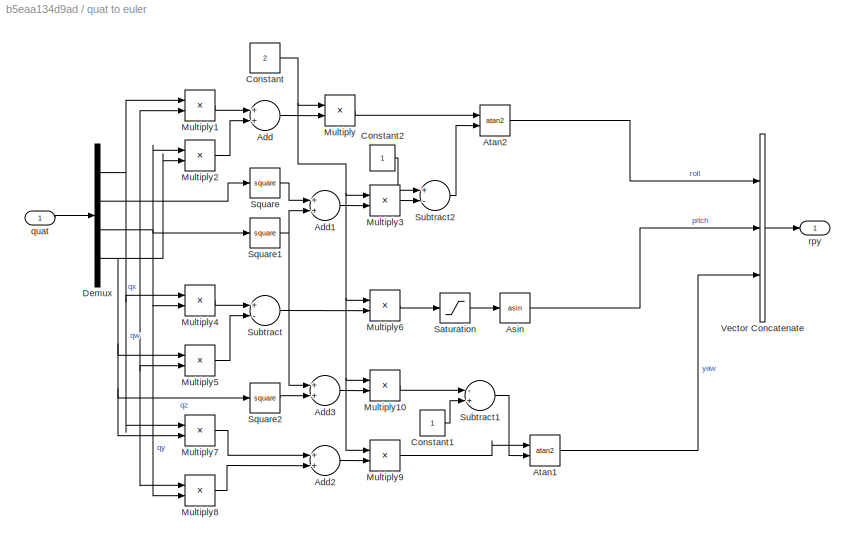
BLOCK [SubSystem] quat to euler
  Ports = [1, 1]
  RequestExecContextInheritance = off
BLOCK [Sum] quat to euler/Add
  AccumDataTypeStr = Inherit: Same as first input
  InputSameDT = off
  OutDataTypeStr = Inherit: Inherit via internal rule
  Ports = [2, 1]
  SaturateOnIntegerOverflow = off
BLOCK [Sum] quat to euler/Add1
  AccumDataTypeStr = Inherit: Same as first input
  InputSameDT = off
  OutDataTypeStr = Inherit: Inherit via internal rule
  Ports = [2, 1]
  SaturateOnIntegerOverflow = off
BLOCK [Sum] quat to euler/Add2
  AccumDataTypeStr = Inherit: Same as first input
  InputSameDT = off
  OutDataTypeStr = Inherit: Inherit via internal rule
  Ports = [2, 1]
  SaturateOnIntegerOverflow = off
BLOCK [Sum] quat to euler/Add3
  AccumDataTypeStr = Inherit: Same as first input
  InputSameDT = off
  OutDataTypeStr = Inherit: Inherit via internal rule
  Ports = [2, 1]
  SaturateOnIntegerOverflow = off
BLOCK [Trigonometry] quat to euler/Asin
  Operator = asin
  Ports = [1, 1]
BLOCK [Trigonometry] quat to euler/Atan1
  Operator = atan2
  Ports = [2, 1]
BLOCK [Trigonometry] quat to euler/Atan2
  Operator = atan2
  Ports = [2, 1]
BLOCK [Constant] quat to euler/Constant
  OutDataTypeStr = single
  Value = 2
BLOCK [Constant] quat to euler/Constant1
  OutDataTypeStr = single
BLOCK [Constant] quat to euler/Constant2
  OutDataTypeStr = single
BLOCK [Demux] quat to euler/Demux
  DisplayOption = bar
  Ports = [1, 4]
BLOCK [Product] quat to euler/Multiply
  InputSameDT = off
  Ports = [2, 1]
  RndMeth = Floor
  SaturateOnIntegerOverflow = off
BLOCK [Product] quat to euler/Multiply1
  InputSameDT = off
  Ports = [2, 1]
  RndMeth = Floor
  SaturateOnIntegerOverflow = off
BLOCK [Product] quat to euler/Multiply10
  InputSameDT = off
  Ports = [2, 1]
  RndMeth = Floor
  SaturateOnIntegerOverflow = off
BLOCK [Product] quat to euler/Multiply2
  InputSameDT = off
  Ports = [2, 1]
  RndMeth = Floor
  SaturateOnIntegerOverflow = off
BLOCK [Product] quat to euler/Multiply3
  InputSameDT = off
  Ports = [2, 1]
  RndMeth = Floor
  SaturateOnIntegerOverflow = off
BLOCK [Product] quat to euler/Multiply4
  InputSameDT = off
  Ports = [2, 1]
  RndMeth = Floor
  SaturateOnIntegerOverflow = off
BLOCK [Product] quat to euler/Multiply5
  InputSameDT = off
  Ports = [2, 1]
  RndMeth = Floor
  SaturateOnIntegerOverflow = off
BLOCK [Product] quat to euler/Multiply6
  InputSameDT = off
  Ports = [2, 1]
  RndMeth = Floor
  SaturateOnIntegerOverflow = off
BLOCK [Product] quat to euler/Multiply7
  InputSameDT = off
  Ports = [2, 1]
  RndMeth = Floor
  SaturateOnIntegerOverflow = off
BLOCK [Product] quat to euler/Multiply8
  InputSameDT = off
  Ports = [2, 1]
  RndMeth = Floor
  SaturateOnIntegerOverflow = off
BLOCK [Product] quat to euler/Multiply9
  InputSameDT = off
  Ports = [2, 1]
  RndMeth = Floor
  SaturateOnIntegerOverflow = off
BLOCK [Saturate] quat to euler/Saturation
  InputPortMap = u0
  LowerLimit = -1
  Ports = [1, 1]
  UpperLimit = 1
BLOCK [Math] quat to euler/Square
  Operator = square
  Ports = [1, 1]
BLOCK [Math] quat to euler/Square1
  Operator = square
  Ports = [1, 1]
BLOCK [Math] quat to euler/Square2
  Operator = square
  Ports = [1, 1]
BLOCK [Sum] quat to euler/Subtract
  AccumDataTypeStr = Inherit: Same as first input
  InputSameDT = off
  Inputs = +-
  OutDataTypeStr = Inherit: Inherit via internal rule
  Ports = [2, 1]
  SaturateOnIntegerOverflow = off
BLOCK [Sum] quat to euler/Subtract1
  AccumDataTypeStr = Inherit: Same as first input
  InputSameDT = off
  Inputs = -+
  OutDataTypeStr = Inherit: Inherit via internal rule
  Ports = [2, 1]
  SaturateOnIntegerOverflow = off
BLOCK [Sum] quat to euler/Subtract2
  AccumDataTypeStr = Inherit: Same as first input
  InputSameDT = off
  Inputs = +-
  OutDataTypeStr = Inherit: Inherit via internal rule
  Ports = [2, 1]
  SaturateOnIntegerOverflow = off
BLOCK [Concatenate] quat to euler/Vector Concatenate
  NumInputs = 3
  Ports = [3, 1]
BLOCK [Inport] quat to euler/quat
  IconDisplay = Port number
BLOCK [Outport] quat to euler/rpy
  IconDisplay = Port number
  Unit = rad
ANNOTATION (root): quaternion basic math operation
ANNOTATION (root): quaternion rotation operation
LINE body to earth/Mux:1 -> body to earth/v_O:1
LINE body to earth/Subsystem/Constant:1 -> body to earth/Subsystem/Sum3:3
LINE body to earth/Subsystem/Demux1:1 -> body to earth/Subsystem/Product8:1
LINE body to earth/Subsystem/Demux1:2 -> body to earth/Subsystem/Product4:2
LINE body to earth/Subsystem/Demux1:3 -> body to earth/Subsystem/Product5:2
LINE body to earth/Subsystem/Demux2:1 -> body to earth/Subsystem/Product3:1
LINE body to earth/Subsystem/Demux2:2 -> body to earth/Subsystem/Product2:1
LINE body to earth/Subsystem/Demux2:3 -> body to earth/Subsystem/Product3:2
LINE body to earth/Subsystem/Demux2:4 -> body to earth/Subsystem/Product2:2
LINE body to earth/Subsystem/Demux3:1 -> body to earth/Subsystem/Terminator1:1
LINE body to earth/Subsystem/Demux3:2 -> body to earth/Subsystem/Terminator2:1
NET body to earth/Subsystem/Demux3:3 -> body to earth/Subsystem/Product6:1, body to earth/Subsystem/Product6:2
NET body to earth/Subsystem/Demux3:4 -> body to earth/Subsystem/Product7:1, body to earth/Subsystem/Product7:2
LINE body to earth/Subsystem/Demux:1 -> body to earth/Subsystem/Product1:1
LINE body to earth/Subsystem/Demux:2 -> body to earth/Subsystem/Product:1
LINE body to earth/Subsystem/Demux:3 -> body to earth/Subsystem/Product:2
LINE body to earth/Subsystem/Demux:4 -> body to earth/Subsystem/Product1:2
LINE body to earth/Subsystem/Gain1:1 -> body to earth/Subsystem/Product5:1
LINE body to earth/Subsystem/Gain2:1 -> body to earth/Subsystem/Product8:2
LINE body to earth/Subsystem/Gain:1 -> body to earth/Subsystem/Product4:1
LINE body to earth/Subsystem/Product1:1 -> body to earth/Subsystem/Sum1:2
LINE body to earth/Subsystem/Product2:1 -> body to earth/Subsystem/Sum2:1
LINE body to earth/Subsystem/Product3:1 -> body to earth/Subsystem/Sum2:2
LINE body to earth/Subsystem/Product4:1 -> body to earth/Subsystem/Sum:2
LINE body to earth/Subsystem/Product5:1 -> body to earth/Subsystem/Sum:3
LINE body to earth/Subsystem/Product6:1 -> body to earth/Subsystem/Sum3:1
LINE body to earth/Subsystem/Product7:1 -> body to earth/Subsystem/Sum3:2
LINE body to earth/Subsystem/Product8:1 -> body to earth/Subsystem/Sum:1
LINE body to earth/Subsystem/Product:1 -> body to earth/Subsystem/Sum1:1
LINE body to earth/Subsystem/Sum1:1 -> body to earth/Subsystem/Gain:1
LINE body to earth/Subsystem/Sum2:1 -> body to earth/Subsystem/Gain1:1
LINE body to earth/Subsystem/Sum3:1 -> body to earth/Subsystem/Gain2:1
LINE body to earth/Subsystem/Sum:1 -> body to earth/Subsystem/V1:1
NET body to earth/Subsystem/q:1 -> body to earth/Subsystem/Demux2:1, body to earth/Subsystem/Demux3:1, body to earth/Subsystem/Demux:1
LINE body to earth/Subsystem/vec:1 -> body to earth/Subsystem/Demux1:1
LINE body to earth/Subsystem1/Constant:1 -> body to earth/Subsystem1/Sum3:3
LINE body to earth/Subsystem1/Demux1:1 -> body to earth/Subsystem1/Product4:1
LINE body to earth/Subsystem1/Demux1:2 -> body to earth/Subsystem1/Product8:2
LINE body to earth/Subsystem1/Demux1:3 -> body to earth/Subsystem1/Product5:2
LINE body to earth/Subsystem1/Demux2:1 -> body to earth/Subsystem1/Product2:1
LINE body to earth/Subsystem1/Demux2:2 -> body to earth/Subsystem1/Product2:2
LINE body to earth/Subsystem1/Demux2:3 -> body to earth/Subsystem1/Product3:1
LINE body to earth/Subsystem1/Demux2:4 -> body to earth/Subsystem1/Product3:2
LINE body to earth/Subsystem1/Demux3:1 -> body to earth/Subsystem1/Terminator1:1
NET body to earth/Subsystem1/Demux3:2 -> body to earth/Subsystem1/Product6:1, body to earth/Subsystem1/Product6:2
LINE body to earth/Subsystem1/Demux3:3 -> body to earth/Subsystem1/Terminator2:1
NET body to earth/Subsystem1/Demux3:4 -> body to earth/Subsystem1/Product7:1, body to earth/Subsystem1/Product7:2
LINE body to earth/Subsystem1/Demux:1 -> body to earth/Subsystem1/Product1:1
LINE body to earth/Subsystem1/Demux:2 -> body to earth/Subsystem1/Product:1
LINE body to earth/Subsystem1/Demux:3 -> body to earth/Subsystem1/Product:2
LINE body to earth/Subsystem1/Demux:4 -> body to earth/Subsystem1/Product1:2
LINE body to earth/Subsystem1/Gain1:1 -> body to earth/Subsystem1/Product5:1
LINE body to earth/Subsystem1/Gain2:1 -> body to earth/Subsystem1/Product8:1
LINE body to earth/Subsystem1/Gain:1 -> body to earth/Subsystem1/Product4:2
LINE body to earth/Subsystem1/Product1:1 -> body to earth/Subsystem1/Sum1:2
LINE body to earth/Subsystem1/Product2:1 -> body to earth/Subsystem1/Sum2:1
LINE body to earth/Subsystem1/Product3:1 -> body to earth/Subsystem1/Sum2:2
LINE body to earth/Subsystem1/Product4:1 -> body to earth/Subsystem1/Sum:1
LINE body to earth/Subsystem1/Product5:1 -> body to earth/Subsystem1/Sum:3
LINE body to earth/Subsystem1/Product6:1 -> body to earth/Subsystem1/Sum3:1
LINE body to earth/Subsystem1/Product7:1 -> body to earth/Subsystem1/Sum3:2
LINE body to earth/Subsystem1/Product8:1 -> body to earth/Subsystem1/Sum:2
LINE body to earth/Subsystem1/Product:1 -> body to earth/Subsystem1/Sum1:1
LINE body to earth/Subsystem1/Sum1:1 -> body to earth/Subsystem1/Gain:1
LINE body to earth/Subsystem1/Sum2:1 -> body to earth/Subsystem1/Gain1:1
LINE body to earth/Subsystem1/Sum3:1 -> body to earth/Subsystem1/Gain2:1
LINE body to earth/Subsystem1/Sum:1 -> body to earth/Subsystem1/V2:1
NET body to earth/Subsystem1/q:1 -> body to earth/Subsystem1/Demux2:1, body to earth/Subsystem1/Demux3:1, body to earth/Subsystem1/Demux:1
LINE body to earth/Subsystem1/vec:1 -> body to earth/Subsystem1/Demux1:1
LINE body to earth/Subsystem1:1 -> body to earth/Mux:2
LINE body to earth/Subsystem2/Constant:1 -> body to earth/Subsystem2/Sum3:3
LINE body to earth/Subsystem2/Demux1:1 -> body to earth/Subsystem2/Product4:1
LINE body to earth/Subsystem2/Demux1:2 -> body to earth/Subsystem2/Product5:2
LINE body to earth/Subsystem2/Demux1:3 -> body to earth/Subsystem2/Product8:2
LINE body to earth/Subsystem2/Demux2:1 -> body to earth/Subsystem2/Product2:1
LINE body to earth/Subsystem2/Demux2:2 -> body to earth/Subsystem2/Product2:2
LINE body to earth/Subsystem2/Demux2:3 -> body to earth/Subsystem2/Product3:1
LINE body to earth/Subsystem2/Demux2:4 -> body to earth/Subsystem2/Product3:2
LINE body to earth/Subsystem2/Demux3:1 -> body to earth/Subsystem2/Terminator1:1
NET body to earth/Subsystem2/Demux3:2 -> body to earth/Subsystem2/Product6:1, body to earth/Subsystem2/Product6:2
NET body to earth/Subsystem2/Demux3:3 -> body to earth/Subsystem2/Product7:1, body to earth/Subsystem2/Product7:2
LINE body to earth/Subsystem2/Demux3:4 -> body to earth/Subsystem2/Terminator:1
LINE body to earth/Subsystem2/Demux4:1 -> body to earth/Subsystem2/Product1:1
LINE body to earth/Subsystem2/Demux4:2 -> body to earth/Subsystem2/Product9:1
LINE body to earth/Subsystem2/Demux4:3 -> body to earth/Subsystem2/Product1:2
LINE body to earth/Subsystem2/Demux4:4 -> body to earth/Subsystem2/Product9:2
LINE body to earth/Subsystem2/Gain1:1 -> body to earth/Subsystem2/Product5:1
LINE body to earth/Subsystem2/Gain2:1 -> body to earth/Subsystem2/Product8:1
LINE body to earth/Subsystem2/Gain3:1 -> body to earth/Subsystem2/Product4:2
LINE body to earth/Subsystem2/Product1:1 -> body to earth/Subsystem2/Sum1:1
LINE body to earth/Subsystem2/Product2:1 -> body to earth/Subsystem2/Sum2:1
LINE body to earth/Subsystem2/Product3:1 -> body to earth/Subsystem2/Sum2:2
LINE body to earth/Subsystem2/Product4:1 -> body to earth/Subsystem2/Sum:1
LINE body to earth/Subsystem2/Product5:1 -> body to earth/Subsystem2/Sum:2
LINE body to earth/Subsystem2/Product6:1 -> body to earth/Subsystem2/Sum3:1
LINE body to earth/Subsystem2/Product7:1 -> body to earth/Subsystem2/Sum3:2
LINE body to earth/Subsystem2/Product8:1 -> body to earth/Subsystem2/Sum:3
LINE body to earth/Subsystem2/Product9:1 -> body to earth/Subsystem2/Sum1:2
LINE body to earth/Subsystem2/Sum1:1 -> body to earth/Subsystem2/Gain3:1
LINE body to earth/Subsystem2/Sum2:1 -> body to earth/Subsystem2/Gain1:1
LINE body to earth/Subsystem2/Sum3:1 -> body to earth/Subsystem2/Gain2:1
LINE body to earth/Subsystem2/Sum:1 -> body to earth/Subsystem2/V3:1
NET body to earth/Subsystem2/q:1 -> body to earth/Subsystem2/Demux2:1, body to earth/Subsystem2/Demux3:1, body to earth/Subsystem2/Demux4:1
LINE body to earth/Subsystem2/vec:1 -> body to earth/Subsystem2/Demux1:1
LINE body to earth/Subsystem2:1 -> body to earth/Mux:3
LINE body to earth/Subsystem:1 -> body to earth/Mux:1
LINE body to earth/q:1 -> body to earth/quat normalize:1
NET body to earth/quat normalize:1 -> body to earth/Subsystem1:1, body to earth/Subsystem2:1, body to earth/Subsystem:1
NET body to earth/v_B:1 -> body to earth/Subsystem1:2, body to earth/Subsystem2:2, body to earth/Subsystem:2
LINE earth to body/Mux:1 -> earth to body/v_B:1
LINE earth to body/Subsystem/Constant:1 -> earth to body/Subsystem/Sum3:3
LINE earth to body/Subsystem/Demux1:1 -> earth to body/Subsystem/Product8:1
LINE earth to body/Subsystem/Demux1:2 -> earth to body/Subsystem/Product4:2
LINE earth to body/Subsystem/Demux1:3 -> earth to body/Subsystem/Product5:2
LINE earth to body/Subsystem/Demux3:1 -> earth to body/Subsystem/Terminator1:1
LINE earth to body/Subsystem/Demux3:2 -> earth to body/Subsystem/Terminator2:1
NET earth to body/Subsystem/Demux3:3 -> earth to body/Subsystem/Product6:1, earth to body/Subsystem/Product6:2
NET earth to body/Subsystem/Demux3:4 -> earth to body/Subsystem/Product7:1, earth to body/Subsystem/Product7:2
LINE earth to body/Subsystem/Demux4:1 -> earth to body/Subsystem/Product2:1
LINE earth to body/Subsystem/Demux4:2 -> earth to body/Subsystem/Product9:1
LINE earth to body/Subsystem/Demux4:3 -> earth to body/Subsystem/Product2:2
LINE earth to body/Subsystem/Demux4:4 -> earth to body/Subsystem/Product9:2
LINE earth to body/Subsystem/Demux:1 -> earth to body/Subsystem/Product1:1
LINE earth to body/Subsystem/Demux:2 -> earth to body/Subsystem/Product:1
LINE earth to body/Subsystem/Demux:3 -> earth to body/Subsystem/Product:2
LINE earth to body/Subsystem/Demux:4 -> earth to body/Subsystem/Product1:2
LINE earth to body/Subsystem/Gain2:1 -> earth to body/Subsystem/Product8:2
LINE earth to body/Subsystem/Gain3:1 -> earth to body/Subsystem/Product5:1
LINE earth to body/Subsystem/Gain:1 -> earth to body/Subsystem/Product4:1
LINE earth to body/Subsystem/Product1:1 -> earth to body/Subsystem/Sum1:2
LINE earth to body/Subsystem/Product2:1 -> earth to body/Subsystem/Sum2:1
LINE earth to body/Subsystem/Product4:1 -> earth to body/Subsystem/Sum:2
LINE earth to body/Subsystem/Product5:1 -> earth to body/Subsystem/Sum:3
LINE earth to body/Subsystem/Product6:1 -> earth to body/Subsystem/Sum3:1
LINE earth to body/Subsystem/Product7:1 -> earth to body/Subsystem/Sum3:2
LINE earth to body/Subsystem/Product8:1 -> earth to body/Subsystem/Sum:1
LINE earth to body/Subsystem/Product9:1 -> earth to body/Subsystem/Sum2:2
LINE earth to body/Subsystem/Product:1 -> earth to body/Subsystem/Sum1:1
LINE earth to body/Subsystem/Sum1:1 -> earth to body/Subsystem/Gain:1
LINE earth to body/Subsystem/Sum2:1 -> earth to body/Subsystem/Gain3:1
LINE earth to body/Subsystem/Sum3:1 -> earth to body/Subsystem/Gain2:1
LINE earth to body/Subsystem/Sum:1 -> earth to body/Subsystem/V1:1
NET earth to body/Subsystem/q1:1 -> earth to body/Subsystem/Demux3:1, earth to body/Subsystem/Demux4:1, earth to body/Subsystem/Demux:1
LINE earth to body/Subsystem/vec:1 -> earth to body/Subsystem/Demux1:1
LINE earth to body/Subsystem1/Constant:1 -> earth to body/Subsystem1/Sum1:3
LINE earth to body/Subsystem1/Demux1:1 -> earth to body/Subsystem1/Product8:1
LINE earth to body/Subsystem1/Demux1:2 -> earth to body/Subsystem1/Product4:2
LINE earth to body/Subsystem1/Demux1:3 -> earth to body/Subsystem1/Product5:2
LINE earth to body/Subsystem1/Demux2:1 -> earth to body/Subsystem1/Product2:1
LINE earth to body/Subsystem1/Demux2:2 -> earth to body/Subsystem1/Product2:2
LINE earth to body/Subsystem1/Demux2:3 -> earth to body/Subsystem1/Product3:1
LINE earth to body/Subsystem1/Demux2:4 -> earth to body/Subsystem1/Product3:2
LINE earth to body/Subsystem1/Demux3:1 -> earth to body/Subsystem1/Product7:1
LINE earth to body/Subsystem1/Demux3:2 -> earth to body/Subsystem1/Product6:1
LINE earth to body/Subsystem1/Demux3:3 -> earth to body/Subsystem1/Product6:2
LINE earth to body/Subsystem1/Demux3:4 -> earth to body/Subsystem1/Product7:2
LINE earth to body/Subsystem1/Demux4:1 -> earth to body/Subsystem1/Terminator1:1
NET earth to body/Subsystem1/Demux4:2 -> earth to body/Subsystem1/Product1:1, earth to body/Subsystem1/Product1:2
LINE earth to body/Subsystem1/Demux4:3 -> earth to body/Subsystem1/Terminator2:1
NET earth to body/Subsystem1/Demux4:4 -> earth to body/Subsystem1/Product9:1, earth to body/Subsystem1/Product9:2
LINE earth to body/Subsystem1/Gain1:1 -> earth to body/Subsystem1/Product5:1
LINE earth to body/Subsystem1/Gain2:1 -> earth to body/Subsystem1/Product8:2
LINE earth to body/Subsystem1/Gain3:1 -> earth to body/Subsystem1/Product4:1
LINE earth to body/Subsystem1/Product1:1 -> earth to body/Subsystem1/Sum1:1
LINE earth to body/Subsystem1/Product2:1 -> earth to body/Subsystem1/Sum2:1
LINE earth to body/Subsystem1/Product3:1 -> earth to body/Subsystem1/Sum2:2
LINE earth to body/Subsystem1/Product4:1 -> earth to body/Subsystem1/Sum:2
LINE earth to body/Subsystem1/Product5:1 -> earth to body/Subsystem1/Sum:3
LINE earth to body/Subsystem1/Product6:1 -> earth to body/Subsystem1/Sum3:1
LINE earth to body/Subsystem1/Product7:1 -> earth to body/Subsystem1/Sum3:2
LINE earth to body/Subsystem1/Product8:1 -> earth to body/Subsystem1/Sum:1
LINE earth to body/Subsystem1/Product9:1 -> earth to body/Subsystem1/Sum1:2
LINE earth to body/Subsystem1/Sum1:1 -> earth to body/Subsystem1/Gain3:1
LINE earth to body/Subsystem1/Sum2:1 -> earth to body/Subsystem1/Gain1:1
LINE earth to body/Subsystem1/Sum3:1 -> earth to body/Subsystem1/Gain2:1
LINE earth to body/Subsystem1/Sum:1 -> earth to body/Subsystem1/V2:1
NET earth to body/Subsystem1/q1:1 -> earth to body/Subsystem1/Demux2:1, earth to body/Subsystem1/Demux3:1, earth to body/Subsystem1/Demux4:1
LINE earth to body/Subsystem1/vec:1 -> earth to body/Subsystem1/Demux1:1
LINE earth to body/Subsystem1:1 -> earth to body/Mux:2
LINE earth to body/Subsystem2/Constant:1 -> earth to body/Subsystem2/Sum2:3
LINE earth to body/Subsystem2/Demux1:1 -> earth to body/Subsystem2/Product8:1
LINE earth to body/Subsystem2/Demux1:2 -> earth to body/Subsystem2/Product4:2
LINE earth to body/Subsystem2/Demux1:3 -> earth to body/Subsystem2/Product5:2
LINE earth to body/Subsystem2/Demux2:1 -> earth to body/Subsystem2/Terminator1:1
NET earth to body/Subsystem2/Demux2:2 -> earth to body/Subsystem2/Product2:1, earth to body/Subsystem2/Product2:2
NET earth to body/Subsystem2/Demux2:3 -> earth to body/Subsystem2/Product3:1, earth to body/Subsystem2/Product3:2
LINE earth to body/Subsystem2/Demux2:4 -> earth to body/Subsystem2/Terminator:1
LINE earth to body/Subsystem2/Demux3:1 -> earth to body/Subsystem2/Product7:1
LINE earth to body/Subsystem2/Demux3:2 -> earth to body/Subsystem2/Product6:1
LINE earth to body/Subsystem2/Demux3:3 -> earth to body/Subsystem2/Product7:2
LINE earth to body/Subsystem2/Demux3:4 -> earth to body/Subsystem2/Product6:2
LINE earth to body/Subsystem2/Demux4:1 -> earth to body/Subsystem2/Product1:1
LINE earth to body/Subsystem2/Demux4:2 -> earth to body/Subsystem2/Product1:2
LINE earth to body/Subsystem2/Demux4:3 -> earth to body/Subsystem2/Product9:1
LINE earth to body/Subsystem2/Demux4:4 -> earth to body/Subsystem2/Product9:2
LINE earth to body/Subsystem2/Gain1:1 -> earth to body/Subsystem2/Product5:1
LINE earth to body/Subsystem2/Gain2:1 -> earth to body/Subsystem2/Product8:2
LINE earth to body/Subsystem2/Gain3:1 -> earth to body/Subsystem2/Product4:1
LINE earth to body/Subsystem2/Product1:1 -> earth to body/Subsystem2/Sum1:1
LINE earth to body/Subsystem2/Product2:1 -> earth to body/Subsystem2/Sum2:1
LINE earth to body/Subsystem2/Product3:1 -> earth to body/Subsystem2/Sum2:2
LINE earth to body/Subsystem2/Product4:1 -> earth to body/Subsystem2/Sum:2
LINE earth to body/Subsystem2/Product5:1 -> earth to body/Subsystem2/Sum:3
LINE earth to body/Subsystem2/Product6:1 -> earth to body/Subsystem2/Sum3:1
LINE earth to body/Subsystem2/Product7:1 -> earth to body/Subsystem2/Sum3:2
LINE earth to body/Subsystem2/Product8:1 -> earth to body/Subsystem2/Sum:1
LINE earth to body/Subsystem2/Product9:1 -> earth to body/Subsystem2/Sum1:2
LINE earth to body/Subsystem2/Sum1:1 -> earth to body/Subsystem2/Gain3:1
LINE earth to body/Subsystem2/Sum2:1 -> earth to body/Subsystem2/Gain1:1
LINE earth to body/Subsystem2/Sum3:1 -> earth to body/Subsystem2/Gain2:1
LINE earth to body/Subsystem2/Sum:1 -> earth to body/Subsystem2/V3:1
NET earth to body/Subsystem2/q1:1 -> earth to body/Subsystem2/Demux2:1, earth to body/Subsystem2/Demux3:1, earth to body/Subsystem2/Demux4:1
LINE earth to body/Subsystem2/vec:1 -> earth to body/Subsystem2/Demux1:1
LINE earth to body/Subsystem2:1 -> earth to body/Mux:3
LINE earth to body/Subsystem:1 -> earth to body/Mux:1
LINE earth to body/q:1 -> earth to body/quat normalize:1
NET earth to body/quat normalize:1 -> earth to body/Subsystem1:1, earth to body/Subsystem2:1, earth to body/Subsystem:1
NET earth to body/v_O:1 -> earth to body/Subsystem1:2, earth to body/Subsystem2:2, earth to body/Subsystem:2
LINE euler to quat/Add1:1 -> euler to quat/Mux:3
LINE euler to quat/Add:1 -> euler to quat/Mux:1
NET euler to quat/Cos1:1 -> euler to quat/Multiply2:2, euler to quat/Multiply5:2, euler to quat/Multiply6:2, euler to quat/Multiply:2
NET euler to quat/Cos2:1 -> euler to quat/Multiply2:3, euler to quat/Multiply4:3, euler to quat/Multiply7:3, euler to quat/Multiply:3
NET euler to quat/Cos:1 -> euler to quat/Multiply3:1, euler to quat/Multiply4:1, euler to quat/Multiply6:1, euler to quat/Multiply:1
NET euler to quat/Demux:1 -> euler to quat/Cos:1, euler to quat/Sin:1
NET euler to quat/Demux:2 -> euler to quat/Cos1:1, euler to quat/Sin1:1
NET euler to quat/Demux:3 -> euler to quat/Cos2:1, euler to quat/Sin2:1
LINE euler to quat/Gain:1 -> euler to quat/Demux:1
LINE euler to quat/Multiply1:1 -> euler to quat/Add:2
LINE euler to quat/Multiply2:1 -> euler to quat/Subtract:1
LINE euler to quat/Multiply3:1 -> euler to quat/Subtract:2
LINE euler to quat/Multiply4:1 -> euler to quat/Add1:1
LINE euler to quat/Multiply5:1 -> euler to quat/Add1:2
LINE euler to quat/Multiply6:1 -> euler to quat/Subtract1:1
LINE euler to quat/Multiply7:1 -> euler to quat/Subtract1:2
LINE euler to quat/Multiply:1 -> euler to quat/Add:1
LINE euler to quat/Mux:1 -> euler to quat/quat:1
NET euler to quat/Sin1:1 -> euler to quat/Multiply1:2, euler to quat/Multiply3:2, euler to quat/Multiply4:2, euler to quat/Multiply7:2
NET euler to quat/Sin2:1 -> euler to quat/Multiply1:3, euler to quat/Multiply3:3, euler to quat/Multiply5:3, euler to quat/Multiply6:3
NET euler to quat/Sin:1 -> euler to quat/Multiply1:1, euler to quat/Multiply2:1, euler to quat/Multiply5:1, euler to quat/Multiply7:1
LINE euler to quat/Subtract1:1 -> euler to quat/Mux:4
LINE euler to quat/Subtract:1 -> euler to quat/Mux:2
LINE euler to quat/rpy:1 -> euler to quat/Gain:1
LINE quad inv/Divide:1 -> quad inv/inv(q):1
NET quad inv/q:1 -> quad inv/quat conj:1, quad inv/quat norm:1
LINE quad inv/quat conj:1 -> quad inv/Divide:1
LINE quad inv/quat norm:1 -> quad inv/Divide:2
LINE quat add/Add:1 -> quat add/q1+q2:1
LINE quat add/q1:1 -> quat add/Add:1
LINE quat add/q2:1 -> quat add/Add:2
LINE quat conj/Demux:1 -> quat conj/Mux:1
LINE quat conj/Demux:2 -> quat conj/Gain:1
LINE quat conj/Demux:3 -> quat conj/Gain1:1
LINE quat conj/Demux:4 -> quat conj/Gain2:1
LINE quat conj/Gain1:1 -> quat conj/Mux:3
LINE quat conj/Gain2:1 -> quat conj/Mux:4
LINE quat conj/Gain:1 -> quat conj/Mux:2
LINE quat conj/Mux:1 -> quat conj/q*:1
LINE quat conj/q:1 -> quat conj/Demux:1
LINE quat from axis/Cos:1 -> quat from axis/Mux:1
LINE quat from axis/Demux:1 -> quat from axis/Multiply:2
LINE quat from axis/Demux:2 -> quat from axis/Multiply1:2
LINE quat from axis/Demux:3 -> quat from axis/Multiply2:2
NET quat from axis/Gain:1 -> quat from axis/Cos:1, quat from axis/Sin:1
LINE quat from axis/Multiply1:1 -> quat from axis/Mux:3
LINE quat from axis/Multiply2:1 -> quat from axis/Mux:4
LINE quat from axis/Multiply:1 -> quat from axis/Mux:2
LINE quat from axis/Mux:1 -> quat from axis/quat normalize:1
NET quat from axis/Sin:1 -> quat from axis/Multiply1:1, quat from axis/Multiply2:1, quat from axis/Multiply:1
LINE quat from axis/axis:1 -> quat from axis/Demux:1
LINE quat from axis/quat normalize:1 -> quat from axis/q:1
LINE quat from axis/theta:1 -> quat from axis/Gain:1
LINE quat from vec/Acos:1 -> quat from vec/Gain:1
LINE quat from vec/Cos:1 -> quat from vec/Mux:1
LINE quat from vec/Demux:1 -> quat from vec/Multiply1:2
LINE quat from vec/Demux:2 -> quat from vec/Multiply2:2
LINE quat from vec/Demux:3 -> quat from vec/Multiply3:2
LINE quat from vec/Dot Product:1 -> quat from vec/Acos:1
NET quat from vec/Gain:1 -> quat from vec/Cos:1, quat from vec/Sin:1
LINE quat from vec/Multiply1:1 -> quat from vec/Mux:2
LINE quat from vec/Multiply2:1 -> quat from vec/Mux:3
LINE quat from vec/Multiply3:1 -> quat from vec/Mux:4
LINE quat from vec/Mux:1 -> quat from vec/quat normalize:1
NET quat from vec/Sin:1 -> quat from vec/Multiply1:1, quat from vec/Multiply2:1, quat from vec/Multiply3:1
LINE quat from vec/cross_product:1 -> quat from vec/Demux:1
LINE quat from vec/quat normalize:1 -> quat from vec/q:1
LINE quat from vec/v_from:1 -> quat from vec/vec_normalize:1
LINE quat from vec/v_to:1 -> quat from vec/vec_normalize1:1
NET quat from vec/vec_normalize1:1 -> quat from vec/Dot Product:2, quat from vec/cross_product:2
NET quat from vec/vec_normalize:1 -> quat from vec/Dot Product:1, quat from vec/cross_product:1
LINE quat modulus/q:1 -> quat modulus/quat norm:1
LINE quat modulus/quat norm:1 -> quat modulus/sqrt:1
LINE quat modulus/sqrt:1 -> quat modulus/|q|:1
LINE quat mult/Mux:1 -> quat mult/q1*q2:1
LINE quat mult/q(0)/Add:1 -> quat mult/q(0)/q0:1
LINE quat mult/q(0)/Demux1:1 -> quat mult/q(0)/Multiply:2
LINE quat mult/q(0)/Demux1:2 -> quat mult/q(0)/Multiply1:2
LINE quat mult/q(0)/Demux1:3 -> quat mult/q(0)/Multiply2:2
LINE quat mult/q(0)/Demux1:4 -> quat mult/q(0)/Multiply3:2
LINE quat mult/q(0)/Demux:1 -> quat mult/q(0)/Multiply:1
LINE quat mult/q(0)/Demux:2 -> quat mult/q(0)/Multiply1:1
LINE quat mult/q(0)/Demux:3 -> quat mult/q(0)/Multiply2:1
LINE quat mult/q(0)/Demux:4 -> quat mult/q(0)/Multiply3:1
LINE quat mult/q(0)/Multiply1:1 -> quat mult/q(0)/Add:2
LINE quat mult/q(0)/Multiply2:1 -> quat mult/q(0)/Add:3
LINE quat mult/q(0)/Multiply3:1 -> quat mult/q(0)/Add:4
LINE quat mult/q(0)/Multiply:1 -> quat mult/q(0)/Add:1
LINE quat mult/q(0)/q:1 -> quat mult/q(0)/Demux:1
LINE quat mult/q(0)/r:1 -> quat mult/q(0)/Demux1:1
LINE quat mult/q(0):1 -> quat mult/Mux:1
LINE quat mult/q(1)/Add:1 -> quat mult/q(1)/q2:1
LINE quat mult/q(1)/Demux1:1 -> quat mult/q(1)/Multiply:2
LINE quat mult/q(1)/Demux1:2 -> quat mult/q(1)/Multiply1:2
LINE quat mult/q(1)/Demux1:3 -> quat mult/q(1)/Multiply3:2
LINE quat mult/q(1)/Demux1:4 -> quat mult/q(1)/Multiply2:2
LINE quat mult/q(1)/Demux:1 -> quat mult/q(1)/Multiply1:1
LINE quat mult/q(1)/Demux:2 -> quat mult/q(1)/Multiply:1
LINE quat mult/q(1)/Demux:3 -> quat mult/q(1)/Multiply2:1
LINE quat mult/q(1)/Demux:4 -> quat mult/q(1)/Multiply3:1
LINE quat mult/q(1)/Multiply1:1 -> quat mult/q(1)/Add:2
LINE quat mult/q(1)/Multiply2:1 -> quat mult/q(1)/Add:3
LINE quat mult/q(1)/Multiply3:1 -> quat mult/q(1)/Add:4
LINE quat mult/q(1)/Multiply:1 -> quat mult/q(1)/Add:1
LINE quat mult/q(1)/q:1 -> quat mult/q(1)/Demux:1
LINE quat mult/q(1)/r:1 -> quat mult/q(1)/Demux1:1
LINE quat mult/q(1):1 -> quat mult/Mux:2
LINE quat mult/q(2)/Add:1 -> quat mult/q(2)/q3:1
LINE quat mult/q(2)/Demux1:1 -> quat mult/q(2)/Multiply:2
LINE quat mult/q(2)/Demux1:2 -> quat mult/q(2)/Multiply2:2
LINE quat mult/q(2)/Demux1:3 -> quat mult/q(2)/Multiply1:2
LINE quat mult/q(2)/Demux1:4 -> quat mult/q(2)/Multiply3:2
LINE quat mult/q(2)/Demux:1 -> quat mult/q(2)/Multiply1:1
LINE quat mult/q(2)/Demux:2 -> quat mult/q(2)/Multiply3:1
LINE quat mult/q(2)/Demux:3 -> quat mult/q(2)/Multiply:1
LINE quat mult/q(2)/Demux:4 -> quat mult/q(2)/Multiply2:1
LINE quat mult/q(2)/Multiply1:1 -> quat mult/q(2)/Add:2
LINE quat mult/q(2)/Multiply2:1 -> quat mult/q(2)/Add:3
LINE quat mult/q(2)/Multiply3:1 -> quat mult/q(2)/Add:4
LINE quat mult/q(2)/Multiply:1 -> quat mult/q(2)/Add:1
LINE quat mult/q(2)/q:1 -> quat mult/q(2)/Demux:1
LINE quat mult/q(2)/r:1 -> quat mult/q(2)/Demux1:1
LINE quat mult/q(2):1 -> quat mult/Mux:3
LINE quat mult/q(3)/Add:1 -> quat mult/q(3)/q4:1
LINE quat mult/q(3)/Demux1:1 -> quat mult/q(3)/Multiply:2
LINE quat mult/q(3)/Demux1:2 -> quat mult/q(3)/Multiply3:2
LINE quat mult/q(3)/Demux1:3 -> quat mult/q(3)/Multiply2:2
LINE quat mult/q(3)/Demux1:4 -> quat mult/q(3)/Multiply1:2
LINE quat mult/q(3)/Demux:1 -> quat mult/q(3)/Multiply1:1
LINE quat mult/q(3)/Demux:2 -> quat mult/q(3)/Multiply2:1
LINE quat mult/q(3)/Demux:3 -> quat mult/q(3)/Multiply3:1
LINE quat mult/q(3)/Demux:4 -> quat mult/q(3)/Multiply:1
LINE quat mult/q(3)/Multiply1:1 -> quat mult/q(3)/Add:2
LINE quat mult/q(3)/Multiply2:1 -> quat mult/q(3)/Add:3
LINE quat mult/q(3)/Multiply3:1 -> quat mult/q(3)/Add:4
LINE quat mult/q(3)/Multiply:1 -> quat mult/q(3)/Add:1
LINE quat mult/q(3)/q:1 -> quat mult/q(3)/Demux:1
LINE quat mult/q(3)/r:1 -> quat mult/q(3)/Demux1:1
LINE quat mult/q(3):1 -> quat mult/Mux:4
NET quat mult/q1:1 -> quat mult/q(0):1, quat mult/q(1):1, quat mult/q(2):1, quat mult/q(3):1
NET quat mult/q2:1 -> quat mult/q(0):2, quat mult/q(1):2, quat mult/q(2):2, quat mult/q(3):2
NET quat norm/Demux:1 -> quat norm/Product:1, quat norm/Product:2
NET quat norm/Demux:2 -> quat norm/Product1:1, quat norm/Product1:2
NET quat norm/Demux:3 -> quat norm/Product2:1, quat norm/Product2:2
NET quat norm/Demux:4 -> quat norm/Product3:1, quat norm/Product3:2
LINE quat norm/Product1:1 -> quat norm/Sum:2
LINE quat norm/Product2:1 -> quat norm/Sum:3
LINE quat norm/Product3:1 -> quat norm/Sum:4
LINE quat norm/Product:1 -> quat norm/Sum:1
LINE quat norm/Sum:1 -> quat norm/norm(q):1
LINE quat norm/q:1 -> quat norm/Demux:1
LINE quat normalize/Demux:1 -> quat normalize/Product:1
LINE quat normalize/Demux:2 -> quat normalize/Product1:1
LINE quat normalize/Demux:3 -> quat normalize/Product2:1
LINE quat normalize/Demux:4 -> quat normalize/Product3:1
LINE quat normalize/Mux:1 -> quat normalize/normal(q):1
LINE quat normalize/Product1:1 -> quat normalize/Mux:2
LINE quat normalize/Product2:1 -> quat normalize/Mux:3
LINE quat normalize/Product3:1 -> quat normalize/Mux:4
LINE quat normalize/Product:1 -> quat normalize/Mux:1
NET quat normalize/q:1 -> quat normalize/Demux:1, quat normalize/quat modulus:1
NET quat normalize/quat modulus:1 -> quat normalize/Product1:2, quat normalize/Product2:2, quat normalize/Product3:2, quat normalize/Product:2
LINE quat to DCM/Matrix Concatenate1:1 -> quat to DCM/DCM:1
LINE quat to DCM/col 1/Add1:1 -> quat to DCM/col 1/Subtract:2
LINE quat to DCM/col 1/Add2:1 -> quat to DCM/col 1/Gain1:1
LINE quat to DCM/col 1/Add:1 -> quat to DCM/col 1/Subtract:1
NET quat to DCM/col 1/Demux:1 -> quat to DCM/col 1/Multiply1:1, quat to DCM/col 1/Multiply3:1, quat to DCM/col 1/Square:1
NET quat to DCM/col 1/Demux:2 -> quat to DCM/col 1/Multiply2:1, quat to DCM/col 1/Multiply:1, quat to DCM/col 1/Square1:1
NET quat to DCM/col 1/Demux:3 -> quat to DCM/col 1/Multiply3:2, quat to DCM/col 1/Multiply:2, quat to DCM/col 1/Square2:1
NET quat to DCM/col 1/Demux:4 -> quat to DCM/col 1/Multiply1:2, quat to DCM/col 1/Multiply2:2, quat to DCM/col 1/Square3:1
LINE quat to DCM/col 1/Gain1:1 -> quat to DCM/col 1/Matrix Concatenate:3
LINE quat to DCM/col 1/Gain:1 -> quat to DCM/col 1/Matrix Concatenate:2
LINE quat to DCM/col 1/Matrix Concatenate:1 -> quat to DCM/col 1/c1:1
LINE quat to DCM/col 1/Multiply1:1 -> quat to DCM/col 1/Subtract1:2
LINE quat to DCM/col 1/Multiply2:1 -> quat to DCM/col 1/Add2:1
LINE quat to DCM/col 1/Multiply3:1 -> quat to DCM/col 1/Add2:2
LINE quat to DCM/col 1/Multiply:1 -> quat to DCM/col 1/Subtract1:1
LINE quat to DCM/col 1/Square1:1 -> quat to DCM/col 1/Add:2
LINE quat to DCM/col 1/Square2:1 -> quat to DCM/col 1/Add1:1
LINE quat to DCM/col 1/Square3:1 -> quat to DCM/col 1/Add1:2
LINE quat to DCM/col 1/Square:1 -> quat to DCM/col 1/Add:1
LINE quat to DCM/col 1/Subtract1:1 -> quat to DCM/col 1/Gain:1
LINE quat to DCM/col 1/Subtract:1 -> quat to DCM/col 1/Matrix Concatenate:1
LINE quat to DCM/col 1/q:1 -> quat to DCM/col 1/Demux:1
LINE quat to DCM/col 1:1 -> quat to DCM/Matrix Concatenate1:1
LINE quat to DCM/col 2/Add1:1 -> quat to DCM/col 2/Subtract:2
LINE quat to DCM/col 2/Add3:1 -> quat to DCM/col 2/Gain:1
LINE quat to DCM/col 2/Add:1 -> quat to DCM/col 2/Subtract:1
NET quat to DCM/col 2/Demux:1 -> quat to DCM/col 2/Multiply1:1, quat to DCM/col 2/Multiply3:1, quat to DCM/col 2/Square:1
NET quat to DCM/col 2/Demux:2 -> quat to DCM/col 2/Multiply3:2, quat to DCM/col 2/Multiply:1, quat to DCM/col 2/Square1:1
NET quat to DCM/col 2/Demux:3 -> quat to DCM/col 2/Multiply2:1, quat to DCM/col 2/Multiply:2, quat to DCM/col 2/Square2:1
NET quat to DCM/col 2/Demux:4 -> quat to DCM/col 2/Multiply1:2, quat to DCM/col 2/Multiply2:2, quat to DCM/col 2/Square3:1
LINE quat to DCM/col 2/Gain1:1 -> quat to DCM/col 2/Matrix Concatenate:3
LINE quat to DCM/col 2/Gain:1 -> quat to DCM/col 2/Matrix Concatenate:1
LINE quat to DCM/col 2/Matrix Concatenate:1 -> quat to DCM/col 2/c2:1
LINE quat to DCM/col 2/Multiply1:1 -> quat to DCM/col 2/Add3:2
LINE quat to DCM/col 2/Multiply2:1 -> quat to DCM/col 2/Subtract1:1
LINE quat to DCM/col 2/Multiply3:1 -> quat to DCM/col 2/Subtract1:2
LINE quat to DCM/col 2/Multiply:1 -> quat to DCM/col 2/Add3:1
LINE quat to DCM/col 2/Square1:1 -> quat to DCM/col 2/Add1:1
LINE quat to DCM/col 2/Square2:1 -> quat to DCM/col 2/Add:2
LINE quat to DCM/col 2/Square3:1 -> quat to DCM/col 2/Add1:2
LINE quat to DCM/col 2/Square:1 -> quat to DCM/col 2/Add:1
LINE quat to DCM/col 2/Subtract1:1 -> quat to DCM/col 2/Gain1:1
LINE quat to DCM/col 2/Subtract:1 -> quat to DCM/col 2/Matrix Concatenate:2
LINE quat to DCM/col 2/q:1 -> quat to DCM/col 2/Demux:1
LINE quat to DCM/col 2:1 -> quat to DCM/Matrix Concatenate1:2
LINE quat to DCM/col 3/Add1:1 -> quat to DCM/col 3/Subtract:2
LINE quat to DCM/col 3/Add2:1 -> quat to DCM/col 3/Gain1:1
LINE quat to DCM/col 3/Add:1 -> quat to DCM/col 3/Subtract:1
NET quat to DCM/col 3/Demux:1 -> quat to DCM/col 3/Multiply1:1, quat to DCM/col 3/Multiply3:1, quat to DCM/col 3/Square:1
NET quat to DCM/col 3/Demux:2 -> quat to DCM/col 3/Multiply3:2, quat to DCM/col 3/Multiply:1, quat to DCM/col 3/Square1:1
NET quat to DCM/col 3/Demux:3 -> quat to DCM/col 3/Multiply1:2, quat to DCM/col 3/Multiply2:1, quat to DCM/col 3/Square2:1
NET quat to DCM/col 3/Demux:4 -> quat to DCM/col 3/Multiply2:2, quat to DCM/col 3/Multiply:2, quat to DCM/col 3/Square3:1
LINE quat to DCM/col 3/Gain1:1 -> quat to DCM/col 3/Matrix Concatenate:2
LINE quat to DCM/col 3/Gain:1 -> quat to DCM/col 3/Matrix Concatenate:1
LINE quat to DCM/col 3/Matrix Concatenate:1 -> quat to DCM/col 3/c3:1
LINE quat to DCM/col 3/Multiply1:1 -> quat to DCM/col 3/Subtract2:2
LINE quat to DCM/col 3/Multiply2:1 -> quat to DCM/col 3/Add2:1
LINE quat to DCM/col 3/Multiply3:1 -> quat to DCM/col 3/Add2:2
LINE quat to DCM/col 3/Multiply:1 -> quat to DCM/col 3/Subtract2:1
LINE quat to DCM/col 3/Square1:1 -> quat to DCM/col 3/Add1:1
LINE quat to DCM/col 3/Square2:1 -> quat to DCM/col 3/Add1:2
LINE quat to DCM/col 3/Square3:1 -> quat to DCM/col 3/Add:2
LINE quat to DCM/col 3/Square:1 -> quat to DCM/col 3/Add:1
LINE quat to DCM/col 3/Subtract2:1 -> quat to DCM/col 3/Gain:1
LINE quat to DCM/col 3/Subtract:1 -> quat to DCM/col 3/Matrix Concatenate:3
LINE quat to DCM/col 3/q:1 -> quat to DCM/col 3/Demux:1
LINE quat to DCM/col 3:1 -> quat to DCM/Matrix Concatenate1:3
NET quat to DCM/quat:1 -> quat to DCM/col 1:1, quat to DCM/col 2:1, quat to DCM/col 3:1
LINE quat to euler/Add1:1 -> quat to euler/Multiply3:2
LINE quat to euler/Add2:1 -> quat to euler/Multiply9:2
LINE quat to euler/Add3:1 -> quat to euler/Multiply10:2
LINE quat to euler/Add:1 -> quat to euler/Multiply:2
LINE quat to euler/Asin:1 -> quat to euler/Vector Concatenate:2
LINE quat to euler/Atan1:1 -> quat to euler/Vector Concatenate:3
LINE quat to euler/Atan2:1 -> quat to euler/Vector Concatenate:1
LINE quat to euler/Constant1:1 -> quat to euler/Subtract1:2
LINE quat to euler/Constant2:1 -> quat to euler/Subtract2:1
NET quat to euler/Constant:1 -> quat to euler/Multiply10:1, quat to euler/Multiply3:1, quat to euler/Multiply6:1, quat to euler/Multiply9:1, quat to euler/Multiply:1
NET quat to euler/Demux:1 -> quat to euler/Multiply1:1, quat to euler/Multiply4:1, quat to euler/Multiply7:1
NET quat to euler/Demux:2 -> quat to euler/Multiply1:2, quat to euler/Multiply5:2, quat to euler/Multiply8:1, quat to euler/Square:1
NET quat to euler/Demux:3 -> quat to euler/Multiply2:1, quat to euler/Multiply4:2, quat to euler/Multiply8:2, quat to euler/Square1:1
NET quat to euler/Demux:4 -> quat to euler/Multiply2:2, quat to euler/Multiply5:1, quat to euler/Multiply7:2, quat to euler/Square2:1
LINE quat to euler/Multiply10:1 -> quat to euler/Subtract1:1
LINE quat to euler/Multiply1:1 -> quat to euler/Add:1
LINE quat to euler/Multiply2:1 -> quat to euler/Add:2
LINE quat to euler/Multiply3:1 -> quat to euler/Subtract2:2
LINE quat to euler/Multiply4:1 -> quat to euler/Subtract:1
LINE quat to euler/Multiply5:1 -> quat to euler/Subtract:2
LINE quat to euler/Multiply6:1 -> quat to euler/Saturation:1
LINE quat to euler/Multiply7:1 -> quat to euler/Add2:1
LINE quat to euler/Multiply8:1 -> quat to euler/Add2:2
LINE quat to euler/Multiply9:1 -> quat to euler/Atan1:1
LINE quat to euler/Multiply:1 -> quat to euler/Atan2:1
LINE quat to euler/Saturation:1 -> quat to euler/Asin:1
NET quat to euler/Square1:1 -> quat to euler/Add1:2, quat to euler/Add3:1
LINE quat to euler/Square2:1 -> quat to euler/Add3:2
LINE quat to euler/Square:1 -> quat to euler/Add1:1
LINE quat to euler/Subtract1:1 -> quat to euler/Atan1:2
LINE quat to euler/Subtract2:1 -> quat to euler/Atan2:2
LINE quat to euler/Subtract:1 -> quat to euler/Multiply6:2
LINE quat to euler/Vector Concatenate:1 -> quat to euler/rpy:1
LINE quat to euler/quat:1 -> quat to euler/Demux:1
note: NET lines group one-source signal fan-out (src -> all destinations, sorted); 1:1 wires keep LINE
